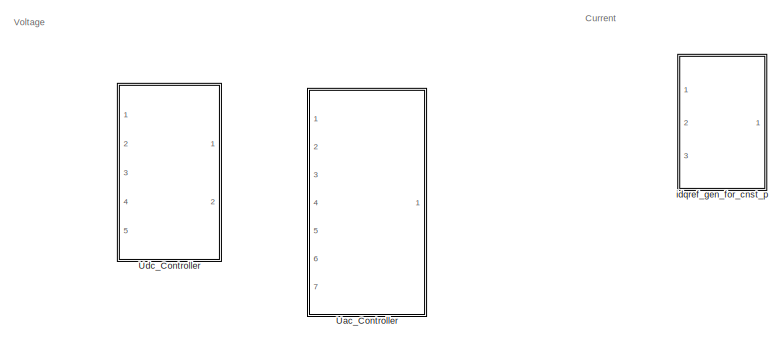
[diagram: root canvas - part 1/2, top left region]
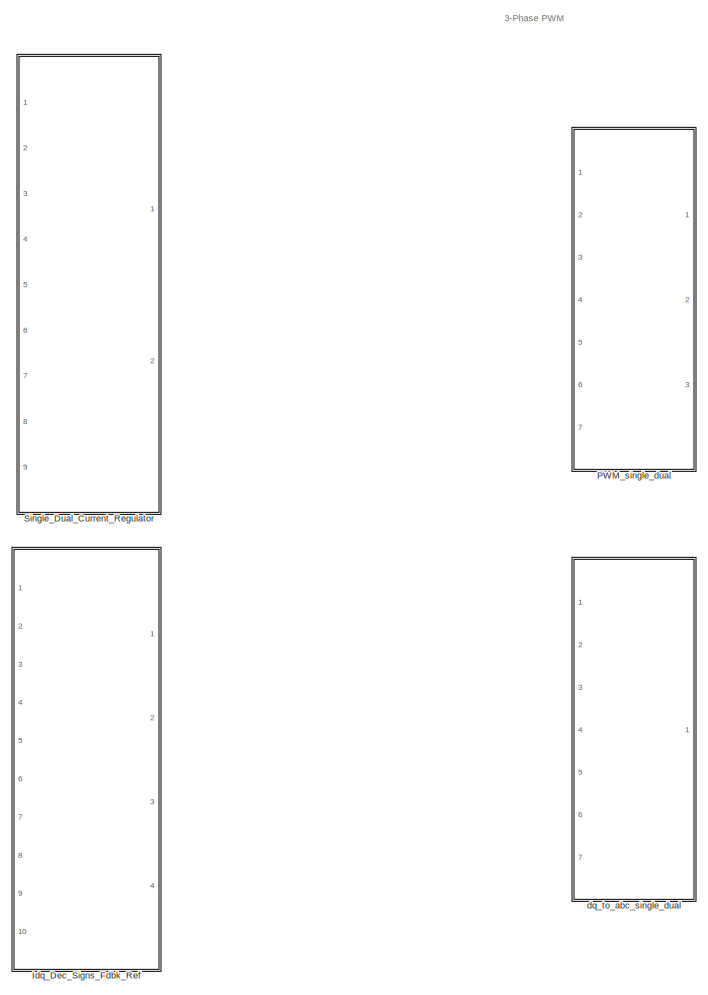
[diagram: root canvas - part 2/2, right side, full height]
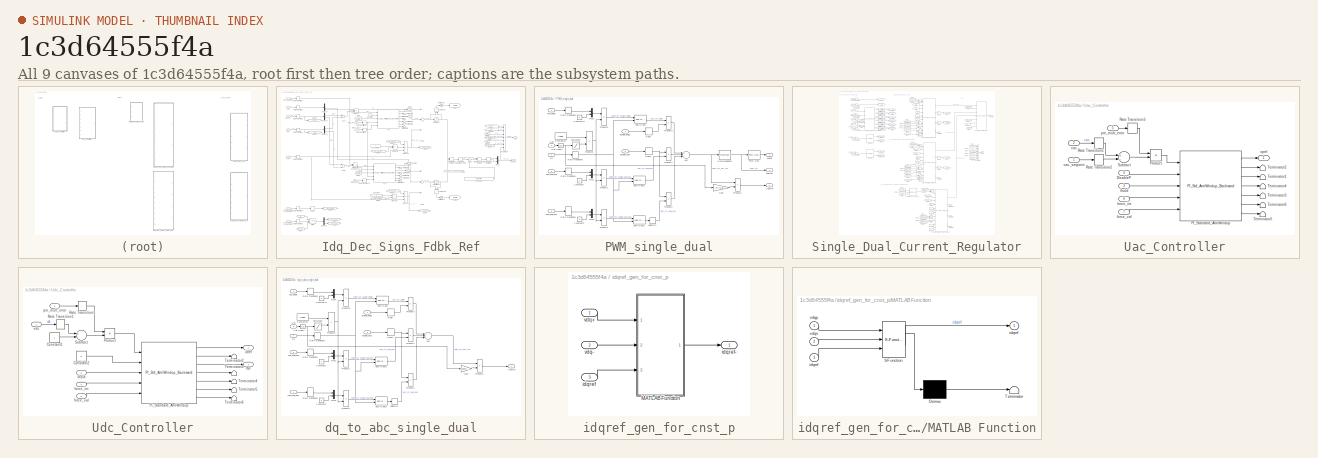
[diagram: thumbnail index - all 9 canvases of the model, root first then tree order]
MODEL slx_1c3d64555f4a
KIND library
CONFIG AbsTol = auto
CONFIG EnableMultiTasking = off
CONFIG FixedStep = auto
CONFIG MaxStep = auto
CONFIG MinStep = auto
CONFIG RelTol = 1e-3
CONFIG SampleTimeConstraint = Unconstrained
CONFIG Solver = VariableStepAuto
CONFIG SolverName = VariableStepAuto
CONFIG StartTime = 0.0
CONFIG StopTime = 10.0
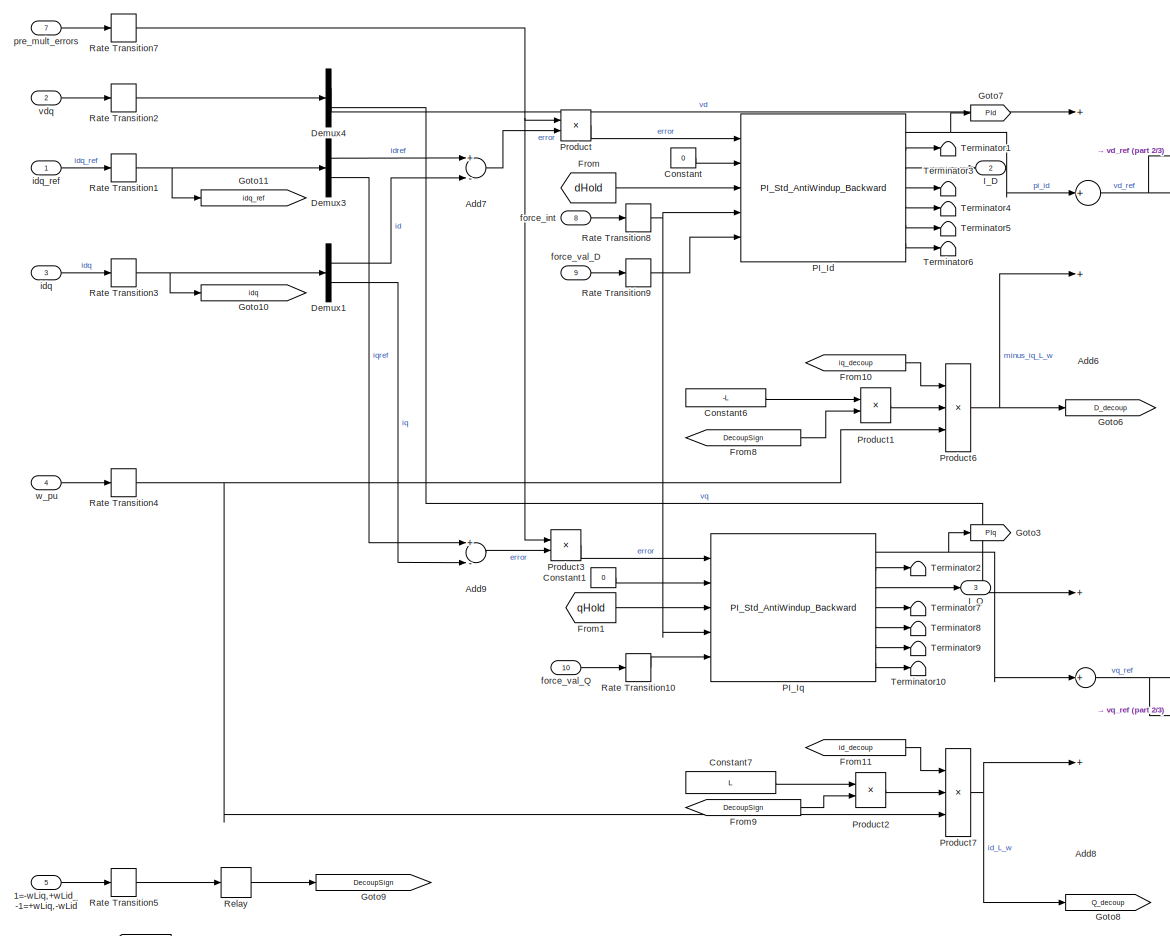
[diagram: Idq_Dec_Signs_Fdbk_Ref - part 1/3, left side, full height]
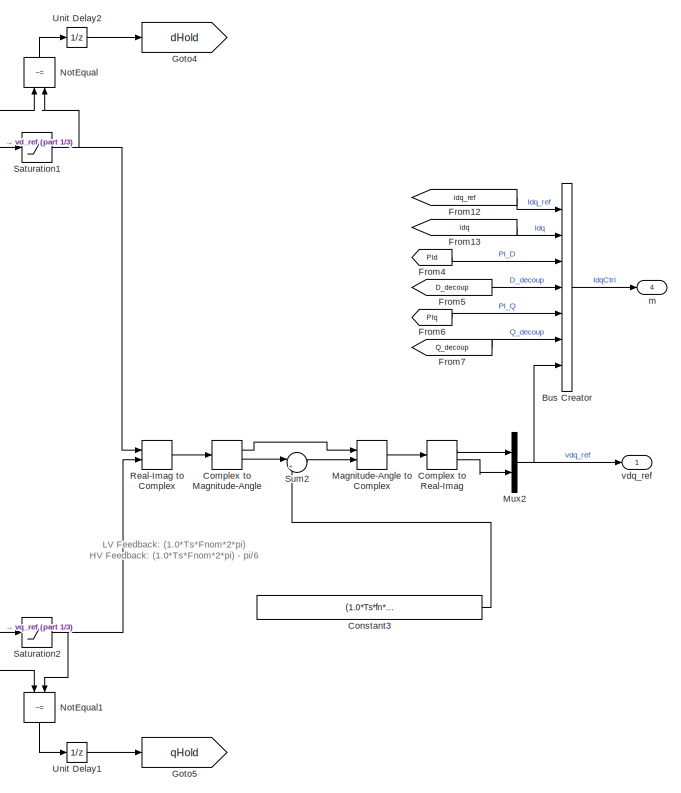
[diagram: Idq_Dec_Signs_Fdbk_Ref - part 2/3, middle right region]
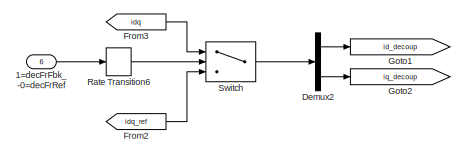
[diagram: Idq_Dec_Signs_Fdbk_Ref - part 3/3, bottom left region]
BLOCK [SubSystem] Idq_Dec_Signs_Fdbk_Ref
  Ports = [10, 4]
  RequestExecContextInheritance = off
BLOCK [Inport] Idq_Dec_Signs_Fdbk_Ref/1=-wLiq,+wLid_-1=+wLiq,-wLid
  IconDisplay = Port number
  Port = 5
BLOCK [Inport] Idq_Dec_Signs_Fdbk_Ref/1=decFrFbk_-0=decFrRef
  IconDisplay = Port number
  Port = 6
BLOCK [Sum] Idq_Dec_Signs_Fdbk_Ref/Add6
  InputSameDT = off
  Inputs = +++
  OutDataTypeStr = Inherit: Inherit via internal rule
  Ports = [3, 1]
  SaturateOnIntegerOverflow = off
BLOCK [Sum] Idq_Dec_Signs_Fdbk_Ref/Add7
  InputSameDT = off
  Inputs = +-
  OutDataTypeStr = Inherit: Inherit via internal rule
  Ports = [2, 1]
  SaturateOnIntegerOverflow = off
BLOCK [Sum] Idq_Dec_Signs_Fdbk_Ref/Add8
  InputSameDT = off
  Inputs = +++
  OutDataTypeStr = Inherit: Inherit via internal rule
  Ports = [3, 1]
  SaturateOnIntegerOverflow = off
BLOCK [Sum] Idq_Dec_Signs_Fdbk_Ref/Add9
  InputSameDT = off
  Inputs = +-
  OutDataTypeStr = Inherit: Inherit via internal rule
  Ports = [2, 1]
  SaturateOnIntegerOverflow = off
BLOCK [BusCreator] Idq_Dec_Signs_Fdbk_Ref/Bus Creator
  DisplayOption = bar
  InheritFromInputs = on
  Inputs = 7
  Ports = [7, 1]
BLOCK [ComplexToMagnitudeAngle] Idq_Dec_Signs_Fdbk_Ref/Complex to Magnitude-Angle
  Ports = [1, 2]
BLOCK [ComplexToRealImag] Idq_Dec_Signs_Fdbk_Ref/Complex to Real-Imag
  Ports = [1, 2]
BLOCK [Constant] Idq_Dec_Signs_Fdbk_Ref/Constant
  SampleTime = Ts
  Value = 0
BLOCK [Constant] Idq_Dec_Signs_Fdbk_Ref/Constant1
  SampleTime = Ts
  Value = 0
BLOCK [Constant] Idq_Dec_Signs_Fdbk_Ref/Constant3
  SampleTime = Ts
  Value = (1.0*Ts*fn*2*pi+TrafoPhaseComp)
BLOCK [Constant] Idq_Dec_Signs_Fdbk_Ref/Constant6
  SampleTime = Ts
  Value = -L
BLOCK [Constant] Idq_Dec_Signs_Fdbk_Ref/Constant7
  SampleTime = Ts
  Value = L
BLOCK [Demux] Idq_Dec_Signs_Fdbk_Ref/Demux1
  DisplayOption = bar
  Outputs = 2
  Ports = [1, 2]
BLOCK [Demux] Idq_Dec_Signs_Fdbk_Ref/Demux2
  DisplayOption = bar
  Outputs = 2
  Ports = [1, 2]
BLOCK [Demux] Idq_Dec_Signs_Fdbk_Ref/Demux3
  DisplayOption = bar
  Outputs = 2
  Ports = [1, 2]
BLOCK [Demux] Idq_Dec_Signs_Fdbk_Ref/Demux4
  DisplayOption = bar
  Outputs = 2
  Ports = [1, 2]
BLOCK [From] Idq_Dec_Signs_Fdbk_Ref/From
  GotoTag = dHold
BLOCK [From] Idq_Dec_Signs_Fdbk_Ref/From1
  GotoTag = qHold
BLOCK [From] Idq_Dec_Signs_Fdbk_Ref/From10
  GotoTag = iq_decoup
BLOCK [From] Idq_Dec_Signs_Fdbk_Ref/From11
  GotoTag = id_decoup
BLOCK [From] Idq_Dec_Signs_Fdbk_Ref/From12
  GotoTag = idq_ref
BLOCK [From] Idq_Dec_Signs_Fdbk_Ref/From13
  GotoTag = idq
BLOCK [From] Idq_Dec_Signs_Fdbk_Ref/From2
  GotoTag = idq_ref
BLOCK [From] Idq_Dec_Signs_Fdbk_Ref/From3
  GotoTag = idq
BLOCK [From] Idq_Dec_Signs_Fdbk_Ref/From4
  GotoTag = PId
BLOCK [From] Idq_Dec_Signs_Fdbk_Ref/From5
  GotoTag = D_decoup
BLOCK [From] Idq_Dec_Signs_Fdbk_Ref/From6
  GotoTag = PIq
BLOCK [From] Idq_Dec_Signs_Fdbk_Ref/From7
  GotoTag = Q_decoup
BLOCK [From] Idq_Dec_Signs_Fdbk_Ref/From8
  GotoTag = DecoupSign
BLOCK [From] Idq_Dec_Signs_Fdbk_Ref/From9
  GotoTag = DecoupSign
BLOCK [Goto] Idq_Dec_Signs_Fdbk_Ref/Goto1
  GotoTag = id_decoup
BLOCK [Goto] Idq_Dec_Signs_Fdbk_Ref/Goto10
  GotoTag = idq
BLOCK [Goto] Idq_Dec_Signs_Fdbk_Ref/Goto11
  GotoTag = idq_ref
BLOCK [Goto] Idq_Dec_Signs_Fdbk_Ref/Goto2
  GotoTag = iq_decoup
BLOCK [Goto] Idq_Dec_Signs_Fdbk_Ref/Goto3
  GotoTag = PIq
BLOCK [Goto] Idq_Dec_Signs_Fdbk_Ref/Goto4
  GotoTag = dHold
BLOCK [Goto] Idq_Dec_Signs_Fdbk_Ref/Goto5
  GotoTag = qHold
BLOCK [Goto] Idq_Dec_Signs_Fdbk_Ref/Goto6
  GotoTag = D_decoup
BLOCK [Goto] Idq_Dec_Signs_Fdbk_Ref/Goto7
  GotoTag = PId
BLOCK [Goto] Idq_Dec_Signs_Fdbk_Ref/Goto8
  GotoTag = Q_decoup
BLOCK [Goto] Idq_Dec_Signs_Fdbk_Ref/Goto9
  GotoTag = DecoupSign
BLOCK [Outport] Idq_Dec_Signs_Fdbk_Ref/I_D
  IconDisplay = Port number
  Port = 2
BLOCK [Outport] Idq_Dec_Signs_Fdbk_Ref/I_Q
  IconDisplay = Port number
  Port = 3
BLOCK [MagnitudeAngleToComplex] Idq_Dec_Signs_Fdbk_Ref/Magnitude-Angle to Complex
  Ports = [2, 1]
BLOCK [Mux] Idq_Dec_Signs_Fdbk_Ref/Mux2
  DisplayOption = bar
  Inputs = 2
  Ports = [2, 1]
BLOCK [RelationalOperator] Idq_Dec_Signs_Fdbk_Ref/NotEqual
  InputSameDT = off
  Operator = ~=
  OutDataTypeStr = boolean
  Ports = [2, 1]
BLOCK [RelationalOperator] Idq_Dec_Signs_Fdbk_Ref/NotEqual1
  InputSameDT = off
  Operator = ~=
  OutDataTypeStr = boolean
  Ports = [2, 1]
BLOCK [Reference] Idq_Dec_Signs_Fdbk_Ref/PI_Id  REF=pwrsysBasic/PI_Std_AntiWindup_Backward
  Ports = [5, 7]
  SourceBlock = pwrsysBasic/PI_Std_AntiWindup_Backward
  SourceProductName = NTNU Power Systems
  SourceType = PI regulator with anti-windup
BLOCK [Reference] Idq_Dec_Signs_Fdbk_Ref/PI_Iq  REF=pwrsysBasic/PI_Std_AntiWindup_Backward
  Ports = [5, 7]
  SourceBlock = pwrsysBasic/PI_Std_AntiWindup_Backward
  SourceProductName = NTNU Power Systems
  SourceType = PI regulator with anti-windup
BLOCK [Product] Idq_Dec_Signs_Fdbk_Ref/Product
  InputSameDT = off
  OutDataTypeStr = Inherit: Inherit via internal rule
  Ports = [2, 1]
  RndMeth = Floor
  SaturateOnIntegerOverflow = off
BLOCK [Product] Idq_Dec_Signs_Fdbk_Ref/Product1
  InputSameDT = off
  OutDataTypeStr = Inherit: Inherit via internal rule
  Ports = [2, 1]
  SaturateOnIntegerOverflow = off
BLOCK [Product] Idq_Dec_Signs_Fdbk_Ref/Product2
  InputSameDT = off
  OutDataTypeStr = Inherit: Inherit via internal rule
  Ports = [2, 1]
  SaturateOnIntegerOverflow = off
BLOCK [Product] Idq_Dec_Signs_Fdbk_Ref/Product3
  InputSameDT = off
  OutDataTypeStr = Inherit: Inherit via internal rule
  Ports = [2, 1]
  RndMeth = Floor
  SaturateOnIntegerOverflow = off
BLOCK [Product] Idq_Dec_Signs_Fdbk_Ref/Product6
  InputSameDT = off
  Inputs = 3
  OutDataTypeStr = Inherit: Inherit via internal rule
  Ports = [3, 1]
  SaturateOnIntegerOverflow = off
BLOCK [Product] Idq_Dec_Signs_Fdbk_Ref/Product7
  InputSameDT = off
  Inputs = 3
  OutDataTypeStr = Inherit: Inherit via internal rule
  Ports = [3, 1]
  SaturateOnIntegerOverflow = off
BLOCK [RateTransition] Idq_Dec_Signs_Fdbk_Ref/Rate Transition1
  InitialCondition = [0 0]
  OutPortSampleTime = Ts
BLOCK [RateTransition] Idq_Dec_Signs_Fdbk_Ref/Rate Transition10
  OutPortSampleTime = Ts
BLOCK [RateTransition] Idq_Dec_Signs_Fdbk_Ref/Rate Transition2
  InitialCondition = [0 0]
  OutPortSampleTime = Ts
BLOCK [RateTransition] Idq_Dec_Signs_Fdbk_Ref/Rate Transition3
  InitialCondition = [0 0]
  OutPortSampleTime = Ts
BLOCK [RateTransition] Idq_Dec_Signs_Fdbk_Ref/Rate Transition4
  InitialCondition = 1
  OutPortSampleTime = Ts
BLOCK [RateTransition] Idq_Dec_Signs_Fdbk_Ref/Rate Transition5
  InitialCondition = 1
  OutPortSampleTime = Ts
BLOCK [RateTransition] Idq_Dec_Signs_Fdbk_Ref/Rate Transition6
  OutPortSampleTime = Ts
BLOCK [RateTransition] Idq_Dec_Signs_Fdbk_Ref/Rate Transition7
  OutPortSampleTime = Ts
BLOCK [RateTransition] Idq_Dec_Signs_Fdbk_Ref/Rate Transition8
  OutPortSampleTime = Ts
BLOCK [RateTransition] Idq_Dec_Signs_Fdbk_Ref/Rate Transition9
  OutPortSampleTime = Ts
BLOCK [RealImagToComplex] Idq_Dec_Signs_Fdbk_Ref/Real-Imag to Complex
  Ports = [2, 1]
BLOCK [Relay] Idq_Dec_Signs_Fdbk_Ref/Relay
  InputProcessing = Elements as channels (sample based)
  OffOutputValue = -1
  OffSwitchValue = -0.1
  OnSwitchValue = 0
BLOCK [Saturate] Idq_Dec_Signs_Fdbk_Ref/Saturation1
  InputPortMap = u0
  LowerLimit = PI_min
  Ports = [1, 1]
  UpperLimit = PI_max
BLOCK [Saturate] Idq_Dec_Signs_Fdbk_Ref/Saturation2
  InputPortMap = u0
  LowerLimit = PI_min
  Ports = [1, 1]
  UpperLimit = PI_max
BLOCK [Sum] Idq_Dec_Signs_Fdbk_Ref/Sum2
  IconShape = round
  InputSameDT = off
  Inputs = |++
  OutDataTypeStr = Inherit: Inherit via internal rule
  Ports = [2, 1]
  SaturateOnIntegerOverflow = off
BLOCK [Switch] Idq_Dec_Signs_Fdbk_Ref/Switch
  Criteria = u2 > Threshold
  InputSameDT = off
  SaturateOnIntegerOverflow = off
  Threshold = 0.5
BLOCK [Terminator] Idq_Dec_Signs_Fdbk_Ref/Terminator1
BLOCK [Terminator] Idq_Dec_Signs_Fdbk_Ref/Terminator10
BLOCK [Terminator] Idq_Dec_Signs_Fdbk_Ref/Terminator2
BLOCK [Terminator] Idq_Dec_Signs_Fdbk_Ref/Terminator3
BLOCK [Terminator] Idq_Dec_Signs_Fdbk_Ref/Terminator4
BLOCK [Terminator] Idq_Dec_Signs_Fdbk_Ref/Terminator5
BLOCK [Terminator] Idq_Dec_Signs_Fdbk_Ref/Terminator6
BLOCK [Terminator] Idq_Dec_Signs_Fdbk_Ref/Terminator7
BLOCK [Terminator] Idq_Dec_Signs_Fdbk_Ref/Terminator8
BLOCK [Terminator] Idq_Dec_Signs_Fdbk_Ref/Terminator9
BLOCK [UnitDelay] Idq_Dec_Signs_Fdbk_Ref/Unit Delay1
  InputProcessing = Elements as channels (sample based)
  SampleTime = Ts
BLOCK [UnitDelay] Idq_Dec_Signs_Fdbk_Ref/Unit Delay2
  InputProcessing = Elements as channels (sample based)
  SampleTime = Ts
BLOCK [Inport] Idq_Dec_Signs_Fdbk_Ref/force_int
  IconDisplay = Port number
  Port = 8
BLOCK [Inport] Idq_Dec_Signs_Fdbk_Ref/force_val_D
  IconDisplay = Port number
  Port = 9
BLOCK [Inport] Idq_Dec_Signs_Fdbk_Ref/force_val_Q
  IconDisplay = Port number
  Port = 10
BLOCK [Inport] Idq_Dec_Signs_Fdbk_Ref/idq
  IconDisplay = Port number
  Port = 3
BLOCK [Inport] Idq_Dec_Signs_Fdbk_Ref/idq_ref
  IconDisplay = Port number
BLOCK [Outport] Idq_Dec_Signs_Fdbk_Ref/m
  IconDisplay = Port number
  Port = 4
BLOCK [Inport] Idq_Dec_Signs_Fdbk_Ref/pre_mult_errors
  IconDisplay = Port number
  Port = 7
BLOCK [Inport] Idq_Dec_Signs_Fdbk_Ref/vdq
  IconDisplay = Port number
  Port = 2
BLOCK [Outport] Idq_Dec_Signs_Fdbk_Ref/vdq_ref
  IconDisplay = Port number
BLOCK [Inport] Idq_Dec_Signs_Fdbk_Ref/w_pu
  IconDisplay = Port number
  Port = 4
BLOCK [SubSystem] PWM_single_dual
  Ports = [7, 3]
  RequestExecContextInheritance = off
BLOCK [Sum] PWM_single_dual/Add
  InputSameDT = off
  Inputs = +++
  OutDataTypeStr = Inherit: Inherit via internal rule
  Ports = [3, 1]
  SaturateOnIntegerOverflow = off
BLOCK [Constant] PWM_single_dual/Constant1
  Value = 0
BLOCK [Constant] PWM_single_dual/Constant10
  Value = Uabp
BLOCK [Constant] PWM_single_dual/Constant11
  Value = 0
BLOCK [Constant] PWM_single_dual/Constant2
  Value = 0
BLOCK [Inport] PWM_single_dual/Enable_dual
  IconDisplay = Port number
  Port = 5
BLOCK [Inport] PWM_single_dual/Enable_single
  IconDisplay = Port number
  Port = 2
BLOCK [Gain] PWM_single_dual/Gain
  Gain = 3^(-0.5)
  OutDataTypeStr = Inherit: Inherit via internal rule
  ParamDataTypeStr = Inherit: Inherit via internal rule
  SaturateOnIntegerOverflow = off
BLOCK [Mux] PWM_single_dual/Mux1
  DisplayOption = bar
  Inputs = [2 1]
  Ports = [2, 1]
BLOCK [Mux] PWM_single_dual/Mux2
  DisplayOption = bar
  Inputs = [2 1]
  Ports = [2, 1]
BLOCK [Mux] PWM_single_dual/Mux3
  DisplayOption = bar
  Inputs = [2 1]
  Ports = [2, 1]
BLOCK [Reference] PWM_single_dual/Overmodulation  REF=powerlib_meascontrol/Pulse & Signal
Generators/Overmodulation
  Commented = through
  Ports = [1, 1]
  SourceBlock = powerlib_meascontrol/Pulse & Signal\nGenerators/Overmodulation
  SourceProductBaseCode = PS
  SourceProductName = Simscape Power Systems
  SourceType = Overmodulation
BLOCK [Reference] PWM_single_dual/PWM Gen  REF=powerlib_meascontrol/Pulse & Signal
Generators/PWM Generator
(2-Level)
  Ports = [1, 1]
  SourceBlock = powerlib_meascontrol/Pulse & Signal\nGenerators/PWM Generator\n(2-Level)
  SourceProductBaseCode = PS
  SourceProductName = Simscape Power Systems
  SourceType = PWM Generator (2-Level)
BLOCK [Product] PWM_single_dual/Product1
  InputSameDT = off
  Inputs = **
  OutDataTypeStr = Inherit: Inherit via internal rule
  Ports = [2, 1]
  RndMeth = Floor
  SaturateOnIntegerOverflow = off
BLOCK [Product] PWM_single_dual/Product2
  InputSameDT = off
  Inputs = **
  OutDataTypeStr = Inherit: Inherit via internal rule
  Ports = [2, 1]
  RndMeth = Floor
  SaturateOnIntegerOverflow = off
BLOCK [Product] PWM_single_dual/Product3
  InputSameDT = off
  Inputs = **
  OutDataTypeStr = Inherit: Inherit via internal rule
  Ports = [2, 1]
  RndMeth = Floor
  SaturateOnIntegerOverflow = off
BLOCK [Product] PWM_single_dual/Product4
  InputSameDT = off
  Inputs = **
  OutDataTypeStr = Inherit: Inherit via internal rule
  Ports = [2, 1]
  RndMeth = Floor
  SaturateOnIntegerOverflow = off
BLOCK [Product] PWM_single_dual/Product5
  InputSameDT = off
  Inputs = **
  OutDataTypeStr = Inherit: Inherit via internal rule
  Ports = [2, 1]
  RndMeth = Floor
  SaturateOnIntegerOverflow = off
BLOCK [Product] PWM_single_dual/Product6
  InputSameDT = off
  Inputs = **
  OutDataTypeStr = Inherit: Inherit via internal rule
  Ports = [2, 1]
  RndMeth = Floor
  SaturateOnIntegerOverflow = off
BLOCK [Product] PWM_single_dual/Product8
  InputSameDT = off
  Inputs = */
  OutDataTypeStr = Inherit: Inherit via internal rule
  Ports = [2, 1]
  RndMeth = Floor
  SaturateOnIntegerOverflow = off
BLOCK [Product] PWM_single_dual/Product9
  InputSameDT = off
  Inputs = **
  OutDataTypeStr = Inherit: Inherit via internal rule
  Ports = [2, 1]
  RndMeth = Floor
  SaturateOnIntegerOverflow = off
BLOCK [RateTransition] PWM_single_dual/Rate Transition1
  OutPortSampleTime = Ts
BLOCK [RateTransition] PWM_single_dual/Rate Transition2
  OutPortSampleTime = Ts
BLOCK [RateTransition] PWM_single_dual/Rate Transition3
  OutPortSampleTime = Ts
BLOCK [RateTransition] PWM_single_dual/Rate Transition5
  OutPortSampleTime = Ts
BLOCK [Relay] PWM_single_dual/Relay
  InputProcessing = Elements as channels (sample based)
  OffSwitchValue = 0.4
  OnSwitchValue = 0.6
BLOCK [Relay] PWM_single_dual/Relay1
  InputProcessing = Elements as channels (sample based)
  OffSwitchValue = 0.4
  OnSwitchValue = 0.6
BLOCK [Saturate] PWM_single_dual/Saturation
  InputPortMap = u0
  LowerLimit = 0.001*Uabp
  Ports = [1, 1]
  UpperLimit = 10*Uabp
BLOCK [Selector] PWM_single_dual/Selector1
  IndexOptions = Index vector (dialog)
  Indices = [1 3 2]
  InputPortWidth = 3
  OutputSizes = 1
  Ports = [1, 1]
BLOCK [Outport] PWM_single_dual/Uabcref
  IconDisplay = Port number
  Port = 2
BLOCK [Inport] PWM_single_dual/Udc
  IconDisplay = Port number
  Port = 6
BLOCK [UnitDelay] PWM_single_dual/Unit Delay2
  InitialCondition = Uabp
  InputProcessing = Elements as channels (sample based)
  SampleTime = Ts
BLOCK [Reference] PWM_single_dual/dq0 to abc  REF=powerlib_meascontrol/Transformations/dq0 to abc
  Ports = [2, 1]
  SourceBlock = powerlib_meascontrol/Transformations/dq0 to abc
  SourceProductBaseCode = PS
  SourceProductName = Simscape Power Systems
  SourceType = dq0 to abc Transformation
BLOCK [Reference] PWM_single_dual/dq0 to abc1  REF=powerlib_meascontrol/Transformations/dq0 to abc
  Ports = [2, 1]
  SourceBlock = powerlib_meascontrol/Transformations/dq0 to abc
  SourceProductBaseCode = PS
  SourceProductName = Simscape Power Systems
  SourceType = dq0 to abc Transformation
BLOCK [Reference] PWM_single_dual/dq0 to abc2  REF=powerlib_meascontrol/Transformations/dq0 to abc
  Ports = [2, 1]
  SourceBlock = powerlib_meascontrol/Transformations/dq0 to abc
  SourceProductBaseCode = PS
  SourceProductName = Simscape Power Systems
  SourceType = dq0 to abc Transformation
BLOCK [Outport] PWM_single_dual/pulses
  IconDisplay = Port number
BLOCK [Outport] PWM_single_dual/uabcref
  IconDisplay = Port number
  Port = 3
BLOCK [Inport] PWM_single_dual/vdq_dual_neg
  IconDisplay = Port number
  Port = 4
BLOCK [Inport] PWM_single_dual/vdq_dual_pos
  IconDisplay = Port number
  Port = 3
BLOCK [Inport] PWM_single_dual/vdq_single
  IconDisplay = Port number
BLOCK [Inport] PWM_single_dual/wt
  IconDisplay = Port number
  Port = 7
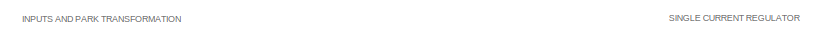
[diagram: Single_Dual_Current_Regulator - part 1/4, top left region]
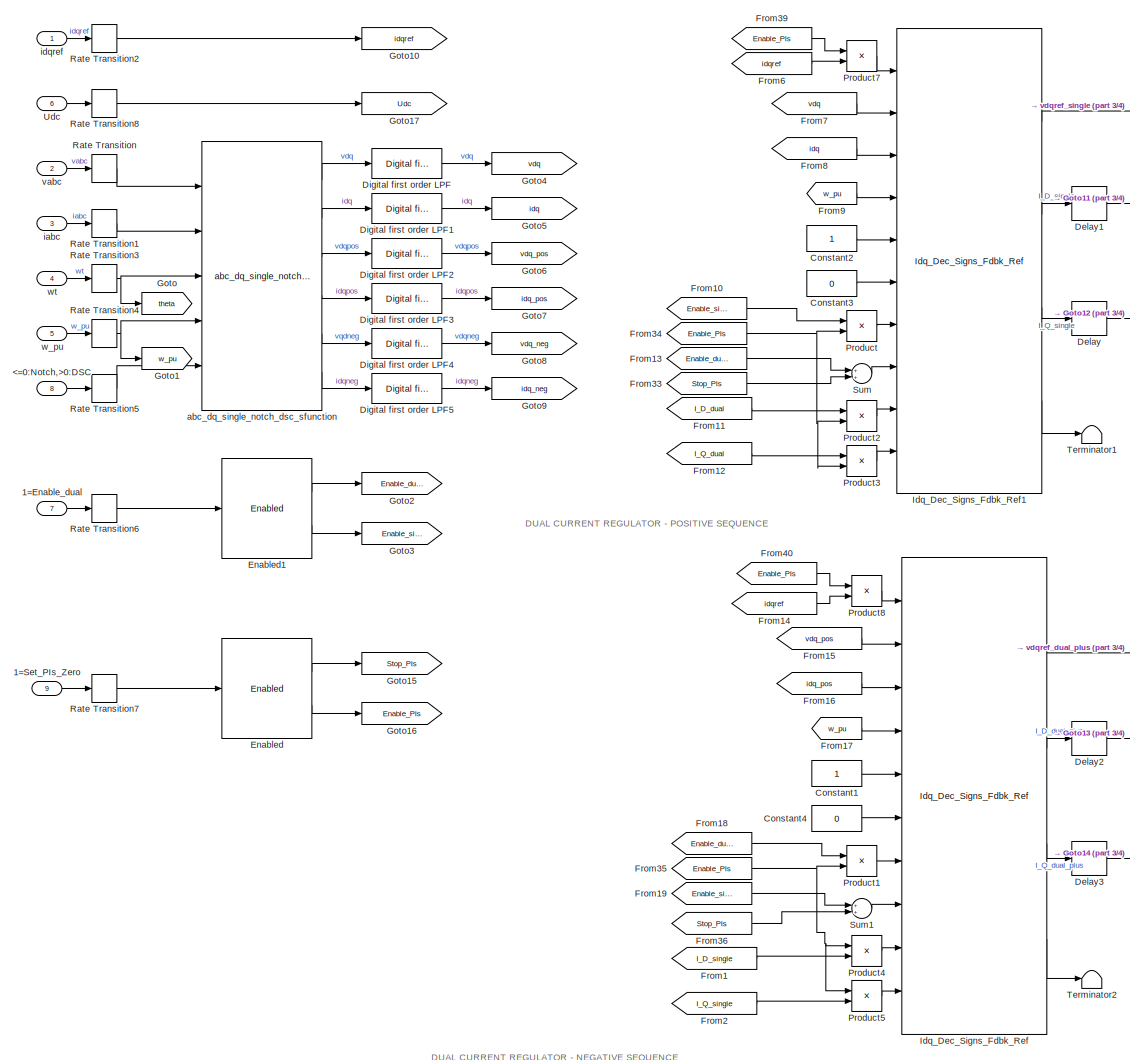
[diagram: Single_Dual_Current_Regulator - part 2/4, central region]
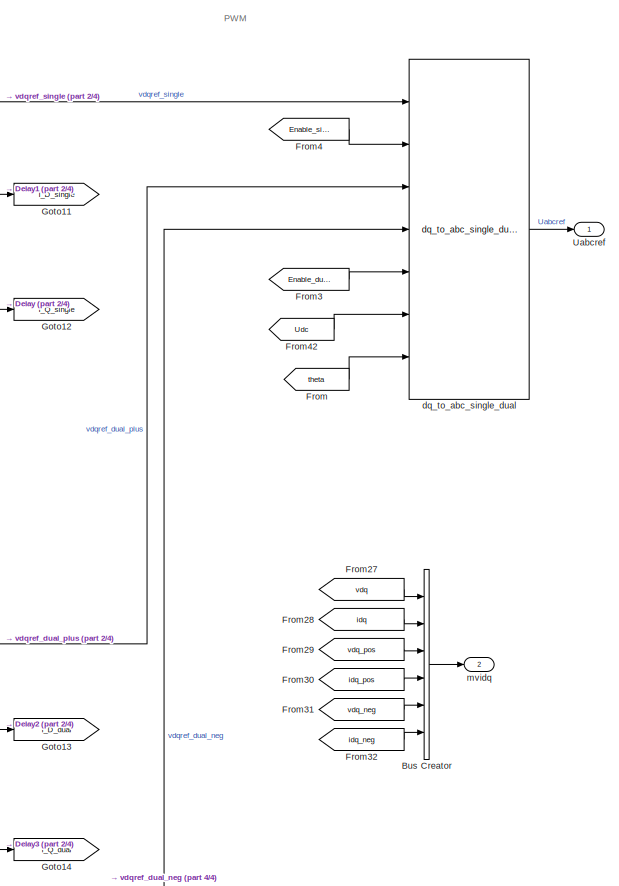
[diagram: Single_Dual_Current_Regulator - part 3/4, top right region]
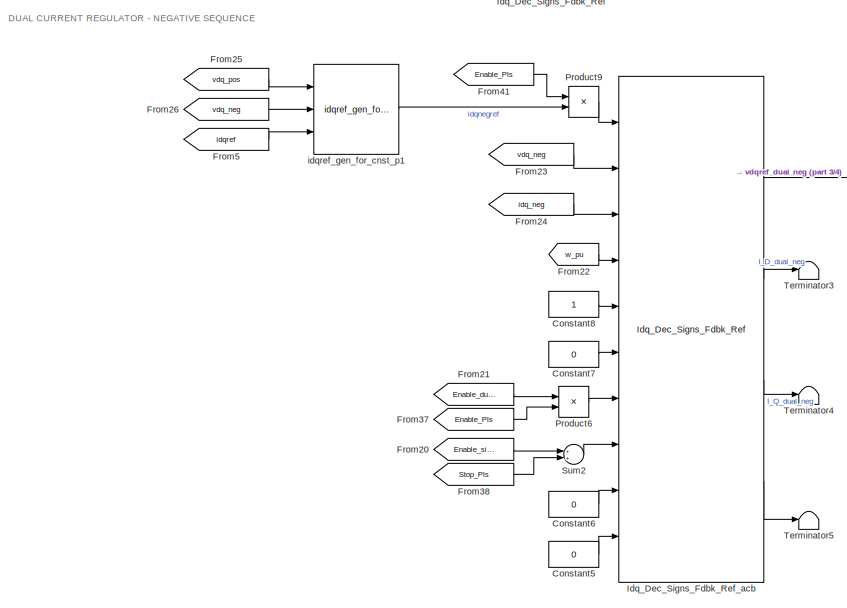
[diagram: Single_Dual_Current_Regulator - part 4/4, bottom center region]
BLOCK [SubSystem] Single_Dual_Current_Regulator
  Ports = [9, 2]
  RequestExecContextInheritance = off
BLOCK [Inport] Single_Dual_Current_Regulator/1=Enable_dual
  IconDisplay = Port number
  Port = 7
BLOCK [Inport] Single_Dual_Current_Regulator/1=Set_PIs_Zero
  IconDisplay = Port number
  Port = 9
BLOCK [Inport] Single_Dual_Current_Regulator/<=0:Notch,>0:DSC
  IconDisplay = Port number
  Port = 8
BLOCK [BusCreator] Single_Dual_Current_Regulator/Bus Creator
  DisplayOption = bar
  InheritFromInputs = on
  Inputs = 6
  Ports = [6, 1]
BLOCK [Constant] Single_Dual_Current_Regulator/Constant1
  SampleTime = Ts
BLOCK [Constant] Single_Dual_Current_Regulator/Constant2
  SampleTime = Ts
BLOCK [Constant] Single_Dual_Current_Regulator/Constant3
  SampleTime = Ts
  Value = 0
BLOCK [Constant] Single_Dual_Current_Regulator/Constant4
  SampleTime = Ts
  Value = 0
BLOCK [Constant] Single_Dual_Current_Regulator/Constant5
  SampleTime = Ts
  Value = 0
BLOCK [Constant] Single_Dual_Current_Regulator/Constant6
  SampleTime = Ts
  Value = 0
BLOCK [Constant] Single_Dual_Current_Regulator/Constant7
  SampleTime = Ts
  Value = 0
BLOCK [Constant] Single_Dual_Current_Regulator/Constant8
  SampleTime = Ts
BLOCK [Delay] Single_Dual_Current_Regulator/Delay
  DelayLength = 1
  InitialCondition = 0
  InputPortMap = u0
  Ports = [1, 1]
  SampleTime = Ts
BLOCK [Delay] Single_Dual_Current_Regulator/Delay1
  DelayLength = 1
  InitialCondition = 0
  InputPortMap = u0
  Ports = [1, 1]
  SampleTime = Ts
BLOCK [Delay] Single_Dual_Current_Regulator/Delay2
  DelayLength = 1
  InitialCondition = 0
  InputPortMap = u0
  Ports = [1, 1]
  SampleTime = Ts
BLOCK [Delay] Single_Dual_Current_Regulator/Delay3
  DelayLength = 1
  InitialCondition = 0
  InputPortMap = u0
  Ports = [1, 1]
  SampleTime = Ts
BLOCK [Reference] Single_Dual_Current_Regulator/Digital first order LPF  REF=pwrsysBasic/Digital first order LPF
  Ports = [1, 1]
  SourceBlock = pwrsysBasic/Digital first order LPF
  SourceProductName = NTNU Power Systems
  SourceType = Digital first-order low-pass filter
BLOCK [Reference] Single_Dual_Current_Regulator/Digital first order LPF1  REF=pwrsysBasic/Digital first order LPF
  Ports = [1, 1]
  SourceBlock = pwrsysBasic/Digital first order LPF
  SourceProductName = NTNU Power Systems
  SourceType = Digital first-order low-pass filter
BLOCK [Reference] Single_Dual_Current_Regulator/Digital first order LPF2  REF=pwrsysBasic/Digital first order LPF
  Ports = [1, 1]
  SourceBlock = pwrsysBasic/Digital first order LPF
  SourceProductName = NTNU Power Systems
  SourceType = Digital first-order low-pass filter
BLOCK [Reference] Single_Dual_Current_Regulator/Digital first order LPF3  REF=pwrsysBasic/Digital first order LPF
  Ports = [1, 1]
  SourceBlock = pwrsysBasic/Digital first order LPF
  SourceProductName = NTNU Power Systems
  SourceType = Digital first-order low-pass filter
BLOCK [Reference] Single_Dual_Current_Regulator/Digital first order LPF4  REF=pwrsysBasic/Digital first order LPF
  Ports = [1, 1]
  SourceBlock = pwrsysBasic/Digital first order LPF
  SourceProductName = NTNU Power Systems
  SourceType = Digital first-order low-pass filter
BLOCK [Reference] Single_Dual_Current_Regulator/Digital first order LPF5  REF=pwrsysBasic/Digital first order LPF
  Ports = [1, 1]
  SourceBlock = pwrsysBasic/Digital first order LPF
  SourceProductName = NTNU Power Systems
  SourceType = Digital first-order low-pass filter
BLOCK [Reference] Single_Dual_Current_Regulator/Enabled  REF=pwrsysBasic/Enabled
  Ports = [1, 2]
  SourceBlock = pwrsysBasic/Enabled
  SourceProductName = NTNU Power Systems
  SourceType = Enabled block
BLOCK [Reference] Single_Dual_Current_Regulator/Enabled1  REF=pwrsysBasic/Enabled
  Ports = [1, 2]
  SourceBlock = pwrsysBasic/Enabled
  SourceProductName = NTNU Power Systems
  SourceType = Enabled block
BLOCK [From] Single_Dual_Current_Regulator/From
  GotoTag = theta
BLOCK [From] Single_Dual_Current_Regulator/From1
  GotoTag = I_D_single
BLOCK [From] Single_Dual_Current_Regulator/From10
  GotoTag = Enable_single
BLOCK [From] Single_Dual_Current_Regulator/From11
  GotoTag = I_D_dual
BLOCK [From] Single_Dual_Current_Regulator/From12
  GotoTag = I_Q_dual
BLOCK [From] Single_Dual_Current_Regulator/From13
  GotoTag = Enable_dual
BLOCK [From] Single_Dual_Current_Regulator/From14
  GotoTag = idqref
BLOCK [From] Single_Dual_Current_Regulator/From15
  GotoTag = vdq_pos
BLOCK [From] Single_Dual_Current_Regulator/From16
  GotoTag = idq_pos
BLOCK [From] Single_Dual_Current_Regulator/From17
  GotoTag = w_pu
BLOCK [From] Single_Dual_Current_Regulator/From18
  GotoTag = Enable_dual
BLOCK [From] Single_Dual_Current_Regulator/From19
  GotoTag = Enable_single
BLOCK [From] Single_Dual_Current_Regulator/From2
  GotoTag = I_Q_single
BLOCK [From] Single_Dual_Current_Regulator/From20
  GotoTag = Enable_single
BLOCK [From] Single_Dual_Current_Regulator/From21
  GotoTag = Enable_dual
BLOCK [From] Single_Dual_Current_Regulator/From22
  GotoTag = w_pu
BLOCK [From] Single_Dual_Current_Regulator/From23
  GotoTag = vdq_neg
BLOCK [From] Single_Dual_Current_Regulator/From24
  GotoTag = idq_neg
BLOCK [From] Single_Dual_Current_Regulator/From25
  GotoTag = vdq_pos
BLOCK [From] Single_Dual_Current_Regulator/From26
  GotoTag = vdq_neg
BLOCK [From] Single_Dual_Current_Regulator/From27
  GotoTag = vdq
BLOCK [From] Single_Dual_Current_Regulator/From28
  GotoTag = idq
BLOCK [From] Single_Dual_Current_Regulator/From29
  GotoTag = vdq_pos
BLOCK [From] Single_Dual_Current_Regulator/From3
  GotoTag = Enable_dual
BLOCK [From] Single_Dual_Current_Regulator/From30
  GotoTag = idq_pos
BLOCK [From] Single_Dual_Current_Regulator/From31
  GotoTag = vdq_neg
BLOCK [From] Single_Dual_Current_Regulator/From32
  GotoTag = idq_neg
BLOCK [From] Single_Dual_Current_Regulator/From33
  GotoTag = Stop_PIs
BLOCK [From] Single_Dual_Current_Regulator/From34
  GotoTag = Enable_PIs
BLOCK [From] Single_Dual_Current_Regulator/From35
  GotoTag = Enable_PIs
BLOCK [From] Single_Dual_Current_Regulator/From36
  GotoTag = Stop_PIs
BLOCK [From] Single_Dual_Current_Regulator/From37
  GotoTag = Enable_PIs
BLOCK [From] Single_Dual_Current_Regulator/From38
  GotoTag = Stop_PIs
BLOCK [From] Single_Dual_Current_Regulator/From39
  GotoTag = Enable_PIs
BLOCK [From] Single_Dual_Current_Regulator/From4
  GotoTag = Enable_single
BLOCK [From] Single_Dual_Current_Regulator/From40
  GotoTag = Enable_PIs
BLOCK [From] Single_Dual_Current_Regulator/From41
  GotoTag = Enable_PIs
BLOCK [From] Single_Dual_Current_Regulator/From42
  GotoTag = Udc
BLOCK [From] Single_Dual_Current_Regulator/From5
  GotoTag = idqref
BLOCK [From] Single_Dual_Current_Regulator/From6
  GotoTag = idqref
BLOCK [From] Single_Dual_Current_Regulator/From7
  GotoTag = vdq
BLOCK [From] Single_Dual_Current_Regulator/From8
  GotoTag = idq
BLOCK [From] Single_Dual_Current_Regulator/From9
  GotoTag = w_pu
BLOCK [Goto] Single_Dual_Current_Regulator/Goto
  GotoTag = theta
BLOCK [Goto] Single_Dual_Current_Regulator/Goto1
  GotoTag = w_pu
BLOCK [Goto] Single_Dual_Current_Regulator/Goto10
  GotoTag = idqref
BLOCK [Goto] Single_Dual_Current_Regulator/Goto11
  GotoTag = I_D_single
BLOCK [Goto] Single_Dual_Current_Regulator/Goto12
  GotoTag = I_Q_single
BLOCK [Goto] Single_Dual_Current_Regulator/Goto13
  GotoTag = I_D_dual
BLOCK [Goto] Single_Dual_Current_Regulator/Goto14
  GotoTag = I_Q_dual
BLOCK [Goto] Single_Dual_Current_Regulator/Goto15
  GotoTag = Stop_PIs
BLOCK [Goto] Single_Dual_Current_Regulator/Goto16
  GotoTag = Enable_PIs
BLOCK [Goto] Single_Dual_Current_Regulator/Goto17
  GotoTag = Udc
BLOCK [Goto] Single_Dual_Current_Regulator/Goto2
  GotoTag = Enable_dual
BLOCK [Goto] Single_Dual_Current_Regulator/Goto3
  GotoTag = Enable_single
BLOCK [Goto] Single_Dual_Current_Regulator/Goto4
  GotoTag = vdq
BLOCK [Goto] Single_Dual_Current_Regulator/Goto5
  GotoTag = idq
BLOCK [Goto] Single_Dual_Current_Regulator/Goto6
  GotoTag = vdq_pos
BLOCK [Goto] Single_Dual_Current_Regulator/Goto7
  GotoTag = idq_pos
BLOCK [Goto] Single_Dual_Current_Regulator/Goto8
  GotoTag = vdq_neg
BLOCK [Goto] Single_Dual_Current_Regulator/Goto9
  GotoTag = idq_neg
BLOCK [Reference] Single_Dual_Current_Regulator/Idq_Dec_Signs_Fdbk_Ref  REF=pwrsysVICtrl/Idq_Dec_Signs_Fdbk_Ref
  Ports = [10, 4]
  SourceBlock = pwrsysVICtrl/Idq_Dec_Signs_Fdbk_Ref
  SourceProductName = NTNU Power Systems
  SourceType = Idq Controller - PI regulator with anti-windup
BLOCK [Reference] Single_Dual_Current_Regulator/Idq_Dec_Signs_Fdbk_Ref1  REF=pwrsysVICtrl/Idq_Dec_Signs_Fdbk_Ref
  Ports = [10, 4]
  SourceBlock = pwrsysVICtrl/Idq_Dec_Signs_Fdbk_Ref
  SourceProductName = NTNU Power Systems
  SourceType = Idq Controller - PI regulator with anti-windup
BLOCK [Reference] Single_Dual_Current_Regulator/Idq_Dec_Signs_Fdbk_Ref_acb  REF=pwrsysVICtrl/Idq_Dec_Signs_Fdbk_Ref
  Ports = [10, 4]
  SourceBlock = pwrsysVICtrl/Idq_Dec_Signs_Fdbk_Ref
  SourceProductName = NTNU Power Systems
  SourceType = Idq Controller - PI regulator with anti-windup
BLOCK [Product] Single_Dual_Current_Regulator/Product
  InputSameDT = off
  OutDataTypeStr = Inherit: Inherit via internal rule
  Ports = [2, 1]
  RndMeth = Floor
  SaturateOnIntegerOverflow = off
BLOCK [Product] Single_Dual_Current_Regulator/Product1
  InputSameDT = off
  OutDataTypeStr = Inherit: Inherit via internal rule
  Ports = [2, 1]
  RndMeth = Floor
  SaturateOnIntegerOverflow = off
BLOCK [Product] Single_Dual_Current_Regulator/Product2
  InputSameDT = off
  OutDataTypeStr = Inherit: Inherit via internal rule
  Ports = [2, 1]
  RndMeth = Floor
  SaturateOnIntegerOverflow = off
BLOCK [Product] Single_Dual_Current_Regulator/Product3
  InputSameDT = off
  OutDataTypeStr = Inherit: Inherit via internal rule
  Ports = [2, 1]
  RndMeth = Floor
  SaturateOnIntegerOverflow = off
BLOCK [Product] Single_Dual_Current_Regulator/Product4
  InputSameDT = off
  OutDataTypeStr = Inherit: Inherit via internal rule
  Ports = [2, 1]
  RndMeth = Floor
  SaturateOnIntegerOverflow = off
BLOCK [Product] Single_Dual_Current_Regulator/Product5
  InputSameDT = off
  OutDataTypeStr = Inherit: Inherit via internal rule
  Ports = [2, 1]
  RndMeth = Floor
  SaturateOnIntegerOverflow = off
BLOCK [Product] Single_Dual_Current_Regulator/Product6
  InputSameDT = off
  OutDataTypeStr = Inherit: Inherit via internal rule
  Ports = [2, 1]
  RndMeth = Floor
  SaturateOnIntegerOverflow = off
BLOCK [Product] Single_Dual_Current_Regulator/Product7
  InputSameDT = off
  OutDataTypeStr = Inherit: Inherit via internal rule
  Ports = [2, 1]
  RndMeth = Floor
  SaturateOnIntegerOverflow = off
BLOCK [Product] Single_Dual_Current_Regulator/Product8
  InputSameDT = off
  OutDataTypeStr = Inherit: Inherit via internal rule
  Ports = [2, 1]
  RndMeth = Floor
  SaturateOnIntegerOverflow = off
BLOCK [Product] Single_Dual_Current_Regulator/Product9
  InputSameDT = off
  OutDataTypeStr = Inherit: Inherit via internal rule
  Ports = [2, 1]
  RndMeth = Floor
  SaturateOnIntegerOverflow = off
BLOCK [RateTransition] Single_Dual_Current_Regulator/Rate Transition
  InitialCondition = [0 0 0]
  OutPortSampleTime = Ts
BLOCK [RateTransition] Single_Dual_Current_Regulator/Rate Transition1
  InitialCondition = [0 0 0]
  OutPortSampleTime = Ts
BLOCK [RateTransition] Single_Dual_Current_Regulator/Rate Transition2
  InitialCondition = [0 0]
  OutPortSampleTime = Ts
BLOCK [RateTransition] Single_Dual_Current_Regulator/Rate Transition3
  OutPortSampleTime = Ts
BLOCK [RateTransition] Single_Dual_Current_Regulator/Rate Transition4
  InitialCondition = 1
  OutPortSampleTime = Ts
BLOCK [RateTransition] Single_Dual_Current_Regulator/Rate Transition5
  OutPortSampleTime = Ts
BLOCK [RateTransition] Single_Dual_Current_Regulator/Rate Transition6
  OutPortSampleTime = Ts
BLOCK [RateTransition] Single_Dual_Current_Regulator/Rate Transition7
  OutPortSampleTime = Ts
BLOCK [RateTransition] Single_Dual_Current_Regulator/Rate Transition8
  InitialCondition = 1
  OutPortSampleTime = Ts
BLOCK [Sum] Single_Dual_Current_Regulator/Sum
  InputSameDT = off
  OutDataTypeStr = Inherit: Inherit via internal rule
  Ports = [2, 1]
  SaturateOnIntegerOverflow = off
BLOCK [Sum] Single_Dual_Current_Regulator/Sum1
  InputSameDT = off
  OutDataTypeStr = Inherit: Inherit via internal rule
  Ports = [2, 1]
  SaturateOnIntegerOverflow = off
BLOCK [Sum] Single_Dual_Current_Regulator/Sum2
  InputSameDT = off
  OutDataTypeStr = Inherit: Inherit via internal rule
  Ports = [2, 1]
  SaturateOnIntegerOverflow = off
BLOCK [Terminator] Single_Dual_Current_Regulator/Terminator1
BLOCK [Terminator] Single_Dual_Current_Regulator/Terminator2
BLOCK [Terminator] Single_Dual_Current_Regulator/Terminator3
BLOCK [Terminator] Single_Dual_Current_Regulator/Terminator4
BLOCK [Terminator] Single_Dual_Current_Regulator/Terminator5
BLOCK [Outport] Single_Dual_Current_Regulator/Uabcref
  IconDisplay = Port number
BLOCK [Inport] Single_Dual_Current_Regulator/Udc
  IconDisplay = Port number
  Port = 6
BLOCK [Reference] Single_Dual_Current_Regulator/abc_dq_single_notch_dsc_sfunction  REF=pwrsysTransf/abc_dq_single_notch_dsc_sfunction
  Ports = [5, 6]
  SourceBlock = pwrsysTransf/abc_dq_single_notch_dsc_sfunction
  SourceProductName = NTNU Power Systems
  SourceType = abc->dq with Matlab
BLOCK [Reference] Single_Dual_Current_Regulator/dq_to_abc_single_dual  REF=pwrsysVICtrl/dq_to_abc_single_dual
  Ports = [7, 1]
  SourceBlock = pwrsysVICtrl/dq_to_abc_single_dual
  SourceProductName = NTNU Power Systems
  SourceType = Scaling of vdq ref and PWM gate generation
BLOCK [Inport] Single_Dual_Current_Regulator/iabc
  IconDisplay = Port number
  Port = 3
BLOCK [Inport] Single_Dual_Current_Regulator/idqref
  IconDisplay = Port number
BLOCK [Reference] Single_Dual_Current_Regulator/idqref_gen_for_cnst_p1  REF=pwrsysVICtrl/idqref_gen_for_cnst_p
  Ports = [3, 1]
  SourceBlock = pwrsysVICtrl/idqref_gen_for_cnst_p
  SourceProductName = NTNU Power Systems
  SourceType = Negative sequence current reference calculation
BLOCK [Outport] Single_Dual_Current_Regulator/mvidq
  IconDisplay = Port number
  Port = 2
BLOCK [Inport] Single_Dual_Current_Regulator/vabc
  IconDisplay = Port number
  Port = 2
BLOCK [Inport] Single_Dual_Current_Regulator/w_pu
  IconDisplay = Port number
  Port = 5
BLOCK [Inport] Single_Dual_Current_Regulator/wt
  IconDisplay = Port number
  Port = 4
BLOCK [SubSystem] Uac_Controller
  Ports = [7, 1]
  RequestExecContextInheritance = off
BLOCK [Inport] Uac_Controller/DisableP
  IconDisplay = Port number
  Port = 4
BLOCK [Inport] Uac_Controller/Ihold
  IconDisplay = Port number
  Port = 3
BLOCK [Reference] Uac_Controller/PI_Standard_AntiWindup  REF=pwrsysBasic/PI_Std_AntiWindup_Backward
  Ports = [5, 7]
  SourceBlock = pwrsysBasic/PI_Std_AntiWindup_Backward
  SourceProductName = NTNU Power Systems
  SourceType = PI regulator with anti-windup
BLOCK [Product] Uac_Controller/Product
  InputSameDT = off
  OutDataTypeStr = Inherit: Inherit via internal rule
  Ports = [2, 1]
  RndMeth = Floor
  SaturateOnIntegerOverflow = off
BLOCK [RateTransition] Uac_Controller/Rate Transition1
  InitialCondition = 1
  OutPortSampleTime = Ts
BLOCK [RateTransition] Uac_Controller/Rate Transition2
  InitialCondition = 1
  OutPortSampleTime = Ts
BLOCK [RateTransition] Uac_Controller/Rate Transition3
  OutPortSampleTime = Ts
BLOCK [Sum] Uac_Controller/Subtract
  InputSameDT = off
  Inputs = +-
  OutDataTypeStr = Inherit: Inherit via internal rule
  Ports = [2, 1]
  SaturateOnIntegerOverflow = off
BLOCK [Terminator] Uac_Controller/Terminator1
BLOCK [Terminator] Uac_Controller/Terminator2
BLOCK [Terminator] Uac_Controller/Terminator3
BLOCK [Terminator] Uac_Controller/Terminator4
BLOCK [Terminator] Uac_Controller/Terminator5
BLOCK [Terminator] Uac_Controller/Terminator6
BLOCK [Inport] Uac_Controller/force_int
  IconDisplay = Port number
  Port = 6
BLOCK [Inport] Uac_Controller/force_val
  IconDisplay = Port number
  Port = 7
BLOCK [Outport] Uac_Controller/iqref
  IconDisplay = Port number
BLOCK [Inport] Uac_Controller/pre_mult_error
  IconDisplay = Port number
  Port = 5
BLOCK [Inport] Uac_Controller/vac
  IconDisplay = Port number
  Port = 2
BLOCK [Inport] Uac_Controller/vac_setpoint
  IconDisplay = Port number
BLOCK [SubSystem] Udc_Controller
  Ports = [5, 2]
  RequestExecContextInheritance = off
BLOCK [Constant] Udc_Controller/Constant1
BLOCK [Constant] Udc_Controller/Constant2
  Value = 0
BLOCK [Outport] Udc_Controller/INT
  IconDisplay = Port number
  Port = 2
BLOCK [Inport] Udc_Controller/Ihold
  IconDisplay = Port number
  Port = 2
BLOCK [Reference] Udc_Controller/PI_Standard_AntiWindup  REF=pwrsysBasic/PI_Std_AntiWindup_Backward
  Ports = [5, 7]
  SourceBlock = pwrsysBasic/PI_Std_AntiWindup_Backward
  SourceProductName = NTNU Power Systems
  SourceType = PI regulator with anti-windup
BLOCK [Product] Udc_Controller/Product
  InputSameDT = off
  OutDataTypeStr = Inherit: Inherit via internal rule
  Ports = [2, 1]
  RndMeth = Floor
  SaturateOnIntegerOverflow = off
BLOCK [RateTransition] Udc_Controller/Rate Transition1
  InitialCondition = 1
  OutPortSampleTime = Ts
BLOCK [RateTransition] Udc_Controller/Rate Transition3
  OutPortSampleTime = Ts
BLOCK [Sum] Udc_Controller/Subtract
  InputSameDT = off
  Inputs = +-
  OutDataTypeStr = Inherit: Inherit via internal rule
  Ports = [2, 1]
  SaturateOnIntegerOverflow = off
BLOCK [Terminator] Udc_Controller/Terminator2
BLOCK [Terminator] Udc_Controller/Terminator3
BLOCK [Terminator] Udc_Controller/Terminator4
BLOCK [Terminator] Udc_Controller/Terminator5
BLOCK [Terminator] Udc_Controller/Terminator6
BLOCK [Inport] Udc_Controller/force_int
  IconDisplay = Port number
  Port = 4
BLOCK [Inport] Udc_Controller/force_val
  IconDisplay = Port number
  Port = 5
BLOCK [Outport] Udc_Controller/idref
  IconDisplay = Port number
BLOCK [Inport] Udc_Controller/pre_mult_error
  IconDisplay = Port number
  Port = 3
BLOCK [Inport] Udc_Controller/vdc
  IconDisplay = Port number
BLOCK [SubSystem] dq_to_abc_single_dual
  Ports = [7, 1]
  RequestExecContextInheritance = off
BLOCK [Sum] dq_to_abc_single_dual/Add
  InputSameDT = off
  Inputs = +++
  OutDataTypeStr = Inherit: Inherit via internal rule
  Ports = [3, 1]
  SaturateOnIntegerOverflow = off
BLOCK [Constant] dq_to_abc_single_dual/Constant1
  SampleTime = Ts
  Value = 0
BLOCK [Constant] dq_to_abc_single_dual/Constant10
  SampleTime = Ts
  Value = Uabp
BLOCK [Constant] dq_to_abc_single_dual/Constant11
  SampleTime = Ts
  Value = 0
BLOCK [Constant] dq_to_abc_single_dual/Constant2
  SampleTime = Ts
  Value = 0
BLOCK [Inport] dq_to_abc_single_dual/Enable_dual
  IconDisplay = Port number
  Port = 5
BLOCK [Inport] dq_to_abc_single_dual/Enable_single
  IconDisplay = Port number
  Port = 2
BLOCK [Gain] dq_to_abc_single_dual/Gain
  Gain = 1/sqrt(3)
  OutDataTypeStr = Inherit: Inherit via internal rule
  ParamDataTypeStr = Inherit: Inherit via internal rule
  SaturateOnIntegerOverflow = off
BLOCK [Mux] dq_to_abc_single_dual/Mux1
  DisplayOption = bar
  Inputs = [2 1]
  Ports = [2, 1]
BLOCK [Mux] dq_to_abc_single_dual/Mux2
  DisplayOption = bar
  Inputs = [2 1]
  Ports = [2, 1]
BLOCK [Mux] dq_to_abc_single_dual/Mux3
  DisplayOption = bar
  Inputs = [2 1]
  Ports = [2, 1]
BLOCK [Product] dq_to_abc_single_dual/Product1
  InputSameDT = off
  Inputs = **
  OutDataTypeStr = Inherit: Inherit via internal rule
  Ports = [2, 1]
  RndMeth = Floor
  SaturateOnIntegerOverflow = off
BLOCK [Product] dq_to_abc_single_dual/Product2
  InputSameDT = off
  Inputs = **
  OutDataTypeStr = Inherit: Inherit via internal rule
  Ports = [2, 1]
  RndMeth = Floor
  SaturateOnIntegerOverflow = off
BLOCK [Product] dq_to_abc_single_dual/Product3
  InputSameDT = off
  Inputs = **
  OutDataTypeStr = Inherit: Inherit via internal rule
  Ports = [2, 1]
  RndMeth = Floor
  SaturateOnIntegerOverflow = off
BLOCK [Product] dq_to_abc_single_dual/Product4
  InputSameDT = off
  Inputs = **
  OutDataTypeStr = Inherit: Inherit via internal rule
  Ports = [2, 1]
  RndMeth = Floor
  SaturateOnIntegerOverflow = off
BLOCK [Product] dq_to_abc_single_dual/Product5
  InputSameDT = off
  Inputs = **
  OutDataTypeStr = Inherit: Inherit via internal rule
  Ports = [2, 1]
  RndMeth = Floor
  SaturateOnIntegerOverflow = off
BLOCK [Product] dq_to_abc_single_dual/Product6
  InputSameDT = off
  Inputs = **
  OutDataTypeStr = Inherit: Inherit via internal rule
  Ports = [2, 1]
  RndMeth = Floor
  SaturateOnIntegerOverflow = off
BLOCK [Product] dq_to_abc_single_dual/Product8
  InputSameDT = off
  Inputs = */
  OutDataTypeStr = Inherit: Inherit via internal rule
  Ports = [2, 1]
  RndMeth = Floor
  SaturateOnIntegerOverflow = off
BLOCK [Product] dq_to_abc_single_dual/Product9
  InputSameDT = off
  Inputs = **
  OutDataTypeStr = Inherit: Inherit via internal rule
  Ports = [2, 1]
  RndMeth = Floor
  SaturateOnIntegerOverflow = off
BLOCK [RateTransition] dq_to_abc_single_dual/Rate Transition1
  OutPortSampleTime = Ts
BLOCK [RateTransition] dq_to_abc_single_dual/Rate Transition2
  OutPortSampleTime = Ts
BLOCK [RateTransition] dq_to_abc_single_dual/Rate Transition3
  OutPortSampleTime = Ts
BLOCK [RateTransition] dq_to_abc_single_dual/Rate Transition5
  OutPortSampleTime = Ts
BLOCK [Relay] dq_to_abc_single_dual/Relay
  InputProcessing = Elements as channels (sample based)
  OffSwitchValue = 0.4
  OnSwitchValue = 0.6
BLOCK [Relay] dq_to_abc_single_dual/Relay1
  InputProcessing = Elements as channels (sample based)
  OffSwitchValue = 0.4
  OnSwitchValue = 0.6
BLOCK [Saturate] dq_to_abc_single_dual/Saturation
  InputPortMap = u0
  LowerLimit = 0.001*Uabp
  Ports = [1, 1]
  UpperLimit = 10*Uabp
BLOCK [Selector] dq_to_abc_single_dual/Selector1
  IndexOptions = Index vector (dialog)
  Indices = [1 3 2]
  InputPortWidth = 3
  OutputSizes = 1
  Ports = [1, 1]
BLOCK [Outport] dq_to_abc_single_dual/Uabcref
  IconDisplay = Port number
BLOCK [Inport] dq_to_abc_single_dual/Udc
  IconDisplay = Port number
  Port = 6
BLOCK [UnitDelay] dq_to_abc_single_dual/Unit Delay2
  InitialCondition = Uabp
  InputProcessing = Elements as channels (sample based)
  SampleTime = Ts
BLOCK [Reference] dq_to_abc_single_dual/dq0 to abc  REF=powerlib_meascontrol/Transformations/dq0 to abc
  Ports = [2, 1]
  SourceBlock = powerlib_meascontrol/Transformations/dq0 to abc
  SourceProductBaseCode = PS
  SourceProductName = Simscape Power Systems
  SourceType = dq0 to abc Transformation
BLOCK [Reference] dq_to_abc_single_dual/dq0 to abc1  REF=powerlib_meascontrol/Transformations/dq0 to abc
  Ports = [2, 1]
  SourceBlock = powerlib_meascontrol/Transformations/dq0 to abc
  SourceProductBaseCode = PS
  SourceProductName = Simscape Power Systems
  SourceType = dq0 to abc Transformation
BLOCK [Reference] dq_to_abc_single_dual/dq0 to abc2  REF=powerlib_meascontrol/Transformations/dq0 to abc
  Ports = [2, 1]
  SourceBlock = powerlib_meascontrol/Transformations/dq0 to abc
  SourceProductBaseCode = PS
  SourceProductName = Simscape Power Systems
  SourceType = dq0 to abc Transformation
BLOCK [Inport] dq_to_abc_single_dual/vdq_dual_neg
  IconDisplay = Port number
  Port = 4
BLOCK [Inport] dq_to_abc_single_dual/vdq_dual_pos
  IconDisplay = Port number
  Port = 3
BLOCK [Inport] dq_to_abc_single_dual/vdq_single
  IconDisplay = Port number
BLOCK [Inport] dq_to_abc_single_dual/wt
  IconDisplay = Port number
  Port = 7
BLOCK [SubSystem] idqref_gen_for_cnst_p
  Ports = [3, 1]
  RequestExecContextInheritance = off
BLOCK [SubSystem] idqref_gen_for_cnst_p/MATLAB Function
  ErrorFcn = Stateflow.Translate.translate
  PermitHierarchicalResolution = ExplicitOnly
  Ports = [3, 1]
  RequestExecContextInheritance = off
  SFBlockType = MATLAB Function
  SystemSampleTime = Ts_control
  TreatAsAtomicUnit = on
BLOCK [Demux] idqref_gen_for_cnst_p/MATLAB Function/ Demux 
  Outputs = 1
  Ports = [1, 1]
BLOCK [S-Function] idqref_gen_for_cnst_p/MATLAB Function/ SFunction 
  EnableBusSupport = off
  FunctionName = sf_sfun
  PortCounts = [3 2]
  Ports = [3, 2]
  SFcnIsStateOwnerBlock = off
  SFunctionDeploymentMode = off
  Tag = Stateflow S-Function pwrsysVICtrl_202301 4
BLOCK [Terminator] idqref_gen_for_cnst_p/MATLAB Function/ Terminator 
BLOCK [Outport] idqref_gen_for_cnst_p/MATLAB Function/idqref
  IconDisplay = Port number
BLOCK [Inport] idqref_gen_for_cnst_p/MATLAB Function/idqref 
  IconDisplay = Port number
  Port = 3
BLOCK [Inport] idqref_gen_for_cnst_p/MATLAB Function/vdqn
  IconDisplay = Port number
  Port = 2
BLOCK [Inport] idqref_gen_for_cnst_p/MATLAB Function/vdqp
  IconDisplay = Port number
BLOCK [Inport] idqref_gen_for_cnst_p/idqref
  IconDisplay = Port number
  Port = 3
BLOCK [Outport] idqref_gen_for_cnst_p/idqref-
  IconDisplay = Port number
BLOCK [Inport] idqref_gen_for_cnst_p/vdq+
  IconDisplay = Port number
BLOCK [Inport] idqref_gen_for_cnst_p/vdq-
  IconDisplay = Port number
  Port = 2
ANNOTATION (root): 3-Phase PWM
ANNOTATION (root): Current
ANNOTATION (root): Voltage
ANNOTATION Idq_Dec_Signs_Fdbk_Ref: LV Feedback: (1.0*Ts*Fnom*2*pi) HV Feedback: (1.0*Ts*Fnom*2*pi) - pi/6
ANNOTATION Single_Dual_Current_Regulator: DUAL CURRENT REGULATOR - NEGATIVE SEQUENCE
ANNOTATION Single_Dual_Current_Regulator: DUAL CURRENT REGULATOR - POSITIVE SEQUENCE
ANNOTATION Single_Dual_Current_Regulator: INPUTS AND PARK TRANSFORMATION
ANNOTATION Single_Dual_Current_Regulator: PWM
ANNOTATION Single_Dual_Current_Regulator: SINGLE CURRENT REGULATOR
LINE Idq_Dec_Signs_Fdbk_Ref/1=-wLiq,+wLid_-1=+wLiq,-wLid:1 -> Idq_Dec_Signs_Fdbk_Ref/Rate Transition5:1
LINE Idq_Dec_Signs_Fdbk_Ref/1=decFrFbk_-0=decFrRef:1 -> Idq_Dec_Signs_Fdbk_Ref/Rate Transition6:1
NET Idq_Dec_Signs_Fdbk_Ref/Add6:1 -> Idq_Dec_Signs_Fdbk_Ref/NotEqual:1, Idq_Dec_Signs_Fdbk_Ref/Saturation1:1
LINE Idq_Dec_Signs_Fdbk_Ref/Add7:1 -> Idq_Dec_Signs_Fdbk_Ref/Product:2
NET Idq_Dec_Signs_Fdbk_Ref/Add8:1 -> Idq_Dec_Signs_Fdbk_Ref/NotEqual1:1, Idq_Dec_Signs_Fdbk_Ref/Saturation2:1
LINE Idq_Dec_Signs_Fdbk_Ref/Add9:1 -> Idq_Dec_Signs_Fdbk_Ref/Product3:2
LINE Idq_Dec_Signs_Fdbk_Ref/Bus Creator:1 -> Idq_Dec_Signs_Fdbk_Ref/m:1
LINE Idq_Dec_Signs_Fdbk_Ref/Complex to Magnitude-Angle:1 -> Idq_Dec_Signs_Fdbk_Ref/Magnitude-Angle to Complex:1
LINE Idq_Dec_Signs_Fdbk_Ref/Complex to Magnitude-Angle:2 -> Idq_Dec_Signs_Fdbk_Ref/Sum2:1
LINE Idq_Dec_Signs_Fdbk_Ref/Complex to Real-Imag:1 -> Idq_Dec_Signs_Fdbk_Ref/Mux2:1
LINE Idq_Dec_Signs_Fdbk_Ref/Complex to Real-Imag:2 -> Idq_Dec_Signs_Fdbk_Ref/Mux2:2
LINE Idq_Dec_Signs_Fdbk_Ref/Constant1:1 -> Idq_Dec_Signs_Fdbk_Ref/PI_Iq:2
LINE Idq_Dec_Signs_Fdbk_Ref/Constant3:1 -> Idq_Dec_Signs_Fdbk_Ref/Sum2:2
LINE Idq_Dec_Signs_Fdbk_Ref/Constant6:1 -> Idq_Dec_Signs_Fdbk_Ref/Product1:1
LINE Idq_Dec_Signs_Fdbk_Ref/Constant7:1 -> Idq_Dec_Signs_Fdbk_Ref/Product2:1
LINE Idq_Dec_Signs_Fdbk_Ref/Constant:1 -> Idq_Dec_Signs_Fdbk_Ref/PI_Id:2
LINE Idq_Dec_Signs_Fdbk_Ref/Demux1:1 -> Idq_Dec_Signs_Fdbk_Ref/Add7:2
LINE Idq_Dec_Signs_Fdbk_Ref/Demux1:2 -> Idq_Dec_Signs_Fdbk_Ref/Add9:2
LINE Idq_Dec_Signs_Fdbk_Ref/Demux2:1 -> Idq_Dec_Signs_Fdbk_Ref/Goto1:1
LINE Idq_Dec_Signs_Fdbk_Ref/Demux2:2 -> Idq_Dec_Signs_Fdbk_Ref/Goto2:1
LINE Idq_Dec_Signs_Fdbk_Ref/Demux3:1 -> Idq_Dec_Signs_Fdbk_Ref/Add7:1
LINE Idq_Dec_Signs_Fdbk_Ref/Demux3:2 -> Idq_Dec_Signs_Fdbk_Ref/Add9:1
LINE Idq_Dec_Signs_Fdbk_Ref/Demux4:1 -> Idq_Dec_Signs_Fdbk_Ref/Add6:1
LINE Idq_Dec_Signs_Fdbk_Ref/Demux4:2 -> Idq_Dec_Signs_Fdbk_Ref/Add8:1
LINE Idq_Dec_Signs_Fdbk_Ref/From10:1 -> Idq_Dec_Signs_Fdbk_Ref/Product6:1
LINE Idq_Dec_Signs_Fdbk_Ref/From11:1 -> Idq_Dec_Signs_Fdbk_Ref/Product7:1
LINE Idq_Dec_Signs_Fdbk_Ref/From12:1 -> Idq_Dec_Signs_Fdbk_Ref/Bus Creator:1
LINE Idq_Dec_Signs_Fdbk_Ref/From13:1 -> Idq_Dec_Signs_Fdbk_Ref/Bus Creator:2
LINE Idq_Dec_Signs_Fdbk_Ref/From1:1 -> Idq_Dec_Signs_Fdbk_Ref/PI_Iq:3
LINE Idq_Dec_Signs_Fdbk_Ref/From2:1 -> Idq_Dec_Signs_Fdbk_Ref/Switch:3
LINE Idq_Dec_Signs_Fdbk_Ref/From3:1 -> Idq_Dec_Signs_Fdbk_Ref/Switch:1
LINE Idq_Dec_Signs_Fdbk_Ref/From4:1 -> Idq_Dec_Signs_Fdbk_Ref/Bus Creator:3
LINE Idq_Dec_Signs_Fdbk_Ref/From5:1 -> Idq_Dec_Signs_Fdbk_Ref/Bus Creator:4
LINE Idq_Dec_Signs_Fdbk_Ref/From6:1 -> Idq_Dec_Signs_Fdbk_Ref/Bus Creator:5
LINE Idq_Dec_Signs_Fdbk_Ref/From7:1 -> Idq_Dec_Signs_Fdbk_Ref/Bus Creator:6
LINE Idq_Dec_Signs_Fdbk_Ref/From8:1 -> Idq_Dec_Signs_Fdbk_Ref/Product1:2
LINE Idq_Dec_Signs_Fdbk_Ref/From9:1 -> Idq_Dec_Signs_Fdbk_Ref/Product2:2
LINE Idq_Dec_Signs_Fdbk_Ref/From:1 -> Idq_Dec_Signs_Fdbk_Ref/PI_Id:3
LINE Idq_Dec_Signs_Fdbk_Ref/Magnitude-Angle to Complex:1 -> Idq_Dec_Signs_Fdbk_Ref/Complex to Real-Imag:1
NET Idq_Dec_Signs_Fdbk_Ref/Mux2:1 -> Idq_Dec_Signs_Fdbk_Ref/Bus Creator:7, Idq_Dec_Signs_Fdbk_Ref/vdq_ref:1
LINE Idq_Dec_Signs_Fdbk_Ref/NotEqual1:1 -> Idq_Dec_Signs_Fdbk_Ref/Unit Delay1:1
LINE Idq_Dec_Signs_Fdbk_Ref/NotEqual:1 -> Idq_Dec_Signs_Fdbk_Ref/Unit Delay2:1
NET Idq_Dec_Signs_Fdbk_Ref/PI_Id:1 -> Idq_Dec_Signs_Fdbk_Ref/Add6:2, Idq_Dec_Signs_Fdbk_Ref/Goto7:1
LINE Idq_Dec_Signs_Fdbk_Ref/PI_Id:2 -> Idq_Dec_Signs_Fdbk_Ref/Terminator1:1
LINE Idq_Dec_Signs_Fdbk_Ref/PI_Id:3 -> Idq_Dec_Signs_Fdbk_Ref/I_D:1
LINE Idq_Dec_Signs_Fdbk_Ref/PI_Id:4 -> Idq_Dec_Signs_Fdbk_Ref/Terminator3:1
LINE Idq_Dec_Signs_Fdbk_Ref/PI_Id:5 -> Idq_Dec_Signs_Fdbk_Ref/Terminator4:1
LINE Idq_Dec_Signs_Fdbk_Ref/PI_Id:6 -> Idq_Dec_Signs_Fdbk_Ref/Terminator5:1
LINE Idq_Dec_Signs_Fdbk_Ref/PI_Id:7 -> Idq_Dec_Signs_Fdbk_Ref/Terminator6:1
NET Idq_Dec_Signs_Fdbk_Ref/PI_Iq:1 -> Idq_Dec_Signs_Fdbk_Ref/Add8:2, Idq_Dec_Signs_Fdbk_Ref/Goto3:1
LINE Idq_Dec_Signs_Fdbk_Ref/PI_Iq:2 -> Idq_Dec_Signs_Fdbk_Ref/Terminator2:1
LINE Idq_Dec_Signs_Fdbk_Ref/PI_Iq:3 -> Idq_Dec_Signs_Fdbk_Ref/I_Q:1
LINE Idq_Dec_Signs_Fdbk_Ref/PI_Iq:4 -> Idq_Dec_Signs_Fdbk_Ref/Terminator7:1
LINE Idq_Dec_Signs_Fdbk_Ref/PI_Iq:5 -> Idq_Dec_Signs_Fdbk_Ref/Terminator8:1
LINE Idq_Dec_Signs_Fdbk_Ref/PI_Iq:6 -> Idq_Dec_Signs_Fdbk_Ref/Terminator9:1
LINE Idq_Dec_Signs_Fdbk_Ref/PI_Iq:7 -> Idq_Dec_Signs_Fdbk_Ref/Terminator10:1
LINE Idq_Dec_Signs_Fdbk_Ref/Product1:1 -> Idq_Dec_Signs_Fdbk_Ref/Product6:2
LINE Idq_Dec_Signs_Fdbk_Ref/Product2:1 -> Idq_Dec_Signs_Fdbk_Ref/Product7:2
LINE Idq_Dec_Signs_Fdbk_Ref/Product3:1 -> Idq_Dec_Signs_Fdbk_Ref/PI_Iq:1
NET Idq_Dec_Signs_Fdbk_Ref/Product6:1 -> Idq_Dec_Signs_Fdbk_Ref/Add6:3, Idq_Dec_Signs_Fdbk_Ref/Goto6:1
NET Idq_Dec_Signs_Fdbk_Ref/Product7:1 -> Idq_Dec_Signs_Fdbk_Ref/Add8:3, Idq_Dec_Signs_Fdbk_Ref/Goto8:1
LINE Idq_Dec_Signs_Fdbk_Ref/Product:1 -> Idq_Dec_Signs_Fdbk_Ref/PI_Id:1
LINE Idq_Dec_Signs_Fdbk_Ref/Rate Transition10:1 -> Idq_Dec_Signs_Fdbk_Ref/PI_Iq:5
NET Idq_Dec_Signs_Fdbk_Ref/Rate Transition1:1 -> Idq_Dec_Signs_Fdbk_Ref/Demux3:1, Idq_Dec_Signs_Fdbk_Ref/Goto11:1
LINE Idq_Dec_Signs_Fdbk_Ref/Rate Transition2:1 -> Idq_Dec_Signs_Fdbk_Ref/Demux4:1
NET Idq_Dec_Signs_Fdbk_Ref/Rate Transition3:1 -> Idq_Dec_Signs_Fdbk_Ref/Demux1:1, Idq_Dec_Signs_Fdbk_Ref/Goto10:1
NET Idq_Dec_Signs_Fdbk_Ref/Rate Transition4:1 -> Idq_Dec_Signs_Fdbk_Ref/Product6:3, Idq_Dec_Signs_Fdbk_Ref/Product7:3
LINE Idq_Dec_Signs_Fdbk_Ref/Rate Transition5:1 -> Idq_Dec_Signs_Fdbk_Ref/Relay:1
LINE Idq_Dec_Signs_Fdbk_Ref/Rate Transition6:1 -> Idq_Dec_Signs_Fdbk_Ref/Switch:2
NET Idq_Dec_Signs_Fdbk_Ref/Rate Transition7:1 -> Idq_Dec_Signs_Fdbk_Ref/Product3:1, Idq_Dec_Signs_Fdbk_Ref/Product:1
NET Idq_Dec_Signs_Fdbk_Ref/Rate Transition8:1 -> Idq_Dec_Signs_Fdbk_Ref/PI_Id:4, Idq_Dec_Signs_Fdbk_Ref/PI_Iq:4
LINE Idq_Dec_Signs_Fdbk_Ref/Rate Transition9:1 -> Idq_Dec_Signs_Fdbk_Ref/PI_Id:5
LINE Idq_Dec_Signs_Fdbk_Ref/Real-Imag to Complex:1 -> Idq_Dec_Signs_Fdbk_Ref/Complex to Magnitude-Angle:1
LINE Idq_Dec_Signs_Fdbk_Ref/Relay:1 -> Idq_Dec_Signs_Fdbk_Ref/Goto9:1
NET Idq_Dec_Signs_Fdbk_Ref/Saturation1:1 -> Idq_Dec_Signs_Fdbk_Ref/NotEqual:2, Idq_Dec_Signs_Fdbk_Ref/Real-Imag to Complex:1
NET Idq_Dec_Signs_Fdbk_Ref/Saturation2:1 -> Idq_Dec_Signs_Fdbk_Ref/NotEqual1:2, Idq_Dec_Signs_Fdbk_Ref/Real-Imag to Complex:2
LINE Idq_Dec_Signs_Fdbk_Ref/Sum2:1 -> Idq_Dec_Signs_Fdbk_Ref/Magnitude-Angle to Complex:2
LINE Idq_Dec_Signs_Fdbk_Ref/Switch:1 -> Idq_Dec_Signs_Fdbk_Ref/Demux2:1
LINE Idq_Dec_Signs_Fdbk_Ref/Unit Delay1:1 -> Idq_Dec_Signs_Fdbk_Ref/Goto5:1
LINE Idq_Dec_Signs_Fdbk_Ref/Unit Delay2:1 -> Idq_Dec_Signs_Fdbk_Ref/Goto4:1
LINE Idq_Dec_Signs_Fdbk_Ref/force_int:1 -> Idq_Dec_Signs_Fdbk_Ref/Rate Transition8:1
LINE Idq_Dec_Signs_Fdbk_Ref/force_val_D:1 -> Idq_Dec_Signs_Fdbk_Ref/Rate Transition9:1
LINE Idq_Dec_Signs_Fdbk_Ref/force_val_Q:1 -> Idq_Dec_Signs_Fdbk_Ref/Rate Transition10:1
LINE Idq_Dec_Signs_Fdbk_Ref/idq:1 -> Idq_Dec_Signs_Fdbk_Ref/Rate Transition3:1
LINE Idq_Dec_Signs_Fdbk_Ref/idq_ref:1 -> Idq_Dec_Signs_Fdbk_Ref/Rate Transition1:1
LINE Idq_Dec_Signs_Fdbk_Ref/pre_mult_errors:1 -> Idq_Dec_Signs_Fdbk_Ref/Rate Transition7:1
LINE Idq_Dec_Signs_Fdbk_Ref/vdq:1 -> Idq_Dec_Signs_Fdbk_Ref/Rate Transition2:1
LINE Idq_Dec_Signs_Fdbk_Ref/w_pu:1 -> Idq_Dec_Signs_Fdbk_Ref/Rate Transition4:1
NET PWM_single_dual/Add:1 -> PWM_single_dual/Overmodulation:1, PWM_single_dual/Product6:1
LINE PWM_single_dual/Constant10:1 -> PWM_single_dual/Product8:1
LINE PWM_single_dual/Constant11:1 -> PWM_single_dual/Mux3:2
LINE PWM_single_dual/Constant1:1 -> PWM_single_dual/Mux1:2
LINE PWM_single_dual/Constant2:1 -> PWM_single_dual/Mux2:2
LINE PWM_single_dual/Enable_dual:1 -> PWM_single_dual/Relay1:1
LINE PWM_single_dual/Enable_single:1 -> PWM_single_dual/Relay:1
LINE PWM_single_dual/Gain:1 -> PWM_single_dual/Product6:2
LINE PWM_single_dual/Mux1:1 -> PWM_single_dual/Product1:1
LINE PWM_single_dual/Mux2:1 -> PWM_single_dual/Product2:1
LINE PWM_single_dual/Mux3:1 -> PWM_single_dual/Product9:1
NET PWM_single_dual/Overmodulation:1 -> PWM_single_dual/PWM Gen:1, PWM_single_dual/uabcref:1
LINE PWM_single_dual/PWM Gen:1 -> PWM_single_dual/pulses:1
LINE PWM_single_dual/Product1:1 -> PWM_single_dual/dq0 to abc1:1
LINE PWM_single_dual/Product2:1 -> PWM_single_dual/dq0 to abc2:1
LINE PWM_single_dual/Product3:1 -> PWM_single_dual/Add:1
LINE PWM_single_dual/Product4:1 -> PWM_single_dual/Add:2
LINE PWM_single_dual/Product5:1 -> PWM_single_dual/Add:3
LINE PWM_single_dual/Product6:1 -> PWM_single_dual/Uabcref:1
NET PWM_single_dual/Product8:1 -> PWM_single_dual/Product1:2, PWM_single_dual/Product2:2, PWM_single_dual/Product9:2
LINE PWM_single_dual/Product9:1 -> PWM_single_dual/dq0 to abc:1
LINE PWM_single_dual/Rate Transition1:1 -> PWM_single_dual/Mux1:1
LINE PWM_single_dual/Rate Transition2:1 -> PWM_single_dual/Mux2:1
LINE PWM_single_dual/Rate Transition3:1 -> PWM_single_dual/Mux3:1
NET PWM_single_dual/Rate Transition5:1 -> PWM_single_dual/dq0 to abc1:2, PWM_single_dual/dq0 to abc2:2, PWM_single_dual/dq0 to abc:2
NET PWM_single_dual/Relay1:1 -> PWM_single_dual/Product4:1, PWM_single_dual/Product5:1
LINE PWM_single_dual/Relay:1 -> PWM_single_dual/Product3:2
LINE PWM_single_dual/Saturation:1 -> PWM_single_dual/Product8:2
LINE PWM_single_dual/Selector1:1 -> PWM_single_dual/Product5:2
LINE PWM_single_dual/Udc:1 -> PWM_single_dual/Unit Delay2:1
NET PWM_single_dual/Unit Delay2:1 -> PWM_single_dual/Gain:1, PWM_single_dual/Saturation:1
LINE PWM_single_dual/dq0 to abc1:1 -> PWM_single_dual/Product4:2
LINE PWM_single_dual/dq0 to abc2:1 -> PWM_single_dual/Selector1:1
LINE PWM_single_dual/dq0 to abc:1 -> PWM_single_dual/Product3:1
LINE PWM_single_dual/vdq_dual_neg:1 -> PWM_single_dual/Rate Transition2:1
LINE PWM_single_dual/vdq_dual_pos:1 -> PWM_single_dual/Rate Transition1:1
LINE PWM_single_dual/vdq_single:1 -> PWM_single_dual/Rate Transition3:1
LINE PWM_single_dual/wt:1 -> PWM_single_dual/Rate Transition5:1
LINE Single_Dual_Current_Regulator/1=Enable_dual:1 -> Single_Dual_Current_Regulator/Rate Transition6:1
LINE Single_Dual_Current_Regulator/1=Set_PIs_Zero:1 -> Single_Dual_Current_Regulator/Rate Transition7:1
LINE Single_Dual_Current_Regulator/<=0:Notch,>0:DSC:1 -> Single_Dual_Current_Regulator/Rate Transition5:1
LINE Single_Dual_Current_Regulator/Bus Creator:1 -> Single_Dual_Current_Regulator/mvidq:1
LINE Single_Dual_Current_Regulator/Constant1:1 -> Single_Dual_Current_Regulator/Idq_Dec_Signs_Fdbk_Ref:5
LINE Single_Dual_Current_Regulator/Constant2:1 -> Single_Dual_Current_Regulator/Idq_Dec_Signs_Fdbk_Ref1:5
LINE Single_Dual_Current_Regulator/Constant3:1 -> Single_Dual_Current_Regulator/Idq_Dec_Signs_Fdbk_Ref1:6
LINE Single_Dual_Current_Regulator/Constant4:1 -> Single_Dual_Current_Regulator/Idq_Dec_Signs_Fdbk_Ref:6
LINE Single_Dual_Current_Regulator/Constant5:1 -> Single_Dual_Current_Regulator/Idq_Dec_Signs_Fdbk_Ref_acb:10
LINE Single_Dual_Current_Regulator/Constant6:1 -> Single_Dual_Current_Regulator/Idq_Dec_Signs_Fdbk_Ref_acb:9
LINE Single_Dual_Current_Regulator/Constant7:1 -> Single_Dual_Current_Regulator/Idq_Dec_Signs_Fdbk_Ref_acb:6
LINE Single_Dual_Current_Regulator/Constant8:1 -> Single_Dual_Current_Regulator/Idq_Dec_Signs_Fdbk_Ref_acb:5
LINE Single_Dual_Current_Regulator/Delay1:1 -> Single_Dual_Current_Regulator/Goto11:1
LINE Single_Dual_Current_Regulator/Delay2:1 -> Single_Dual_Current_Regulator/Goto13:1
LINE Single_Dual_Current_Regulator/Delay3:1 -> Single_Dual_Current_Regulator/Goto14:1
LINE Single_Dual_Current_Regulator/Delay:1 -> Single_Dual_Current_Regulator/Goto12:1
LINE Single_Dual_Current_Regulator/Digital first order LPF1:1 -> Single_Dual_Current_Regulator/Goto5:1
LINE Single_Dual_Current_Regulator/Digital first order LPF2:1 -> Single_Dual_Current_Regulator/Goto6:1
LINE Single_Dual_Current_Regulator/Digital first order LPF3:1 -> Single_Dual_Current_Regulator/Goto7:1
LINE Single_Dual_Current_Regulator/Digital first order LPF4:1 -> Single_Dual_Current_Regulator/Goto8:1
LINE Single_Dual_Current_Regulator/Digital first order LPF5:1 -> Single_Dual_Current_Regulator/Goto9:1
LINE Single_Dual_Current_Regulator/Digital first order LPF:1 -> Single_Dual_Current_Regulator/Goto4:1
LINE Single_Dual_Current_Regulator/Enabled1:1 -> Single_Dual_Current_Regulator/Goto2:1
LINE Single_Dual_Current_Regulator/Enabled1:2 -> Single_Dual_Current_Regulator/Goto3:1
LINE Single_Dual_Current_Regulator/Enabled:1 -> Single_Dual_Current_Regulator/Goto15:1
LINE Single_Dual_Current_Regulator/Enabled:2 -> Single_Dual_Current_Regulator/Goto16:1
LINE Single_Dual_Current_Regulator/From10:1 -> Single_Dual_Current_Regulator/Product:1
LINE Single_Dual_Current_Regulator/From11:1 -> Single_Dual_Current_Regulator/Product2:1
LINE Single_Dual_Current_Regulator/From12:1 -> Single_Dual_Current_Regulator/Product3:1
LINE Single_Dual_Current_Regulator/From13:1 -> Single_Dual_Current_Regulator/Sum:1
LINE Single_Dual_Current_Regulator/From14:1 -> Single_Dual_Current_Regulator/Product8:2
LINE Single_Dual_Current_Regulator/From15:1 -> Single_Dual_Current_Regulator/Idq_Dec_Signs_Fdbk_Ref:2
LINE Single_Dual_Current_Regulator/From16:1 -> Single_Dual_Current_Regulator/Idq_Dec_Signs_Fdbk_Ref:3
LINE Single_Dual_Current_Regulator/From17:1 -> Single_Dual_Current_Regulator/Idq_Dec_Signs_Fdbk_Ref:4
LINE Single_Dual_Current_Regulator/From18:1 -> Single_Dual_Current_Regulator/Product1:1
LINE Single_Dual_Current_Regulator/From19:1 -> Single_Dual_Current_Regulator/Sum1:1
LINE Single_Dual_Current_Regulator/From1:1 -> Single_Dual_Current_Regulator/Product4:2
LINE Single_Dual_Current_Regulator/From20:1 -> Single_Dual_Current_Regulator/Sum2:1
LINE Single_Dual_Current_Regulator/From21:1 -> Single_Dual_Current_Regulator/Product6:1
LINE Single_Dual_Current_Regulator/From22:1 -> Single_Dual_Current_Regulator/Idq_Dec_Signs_Fdbk_Ref_acb:4
LINE Single_Dual_Current_Regulator/From23:1 -> Single_Dual_Current_Regulator/Idq_Dec_Signs_Fdbk_Ref_acb:2
LINE Single_Dual_Current_Regulator/From24:1 -> Single_Dual_Current_Regulator/Idq_Dec_Signs_Fdbk_Ref_acb:3
LINE Single_Dual_Current_Regulator/From25:1 -> Single_Dual_Current_Regulator/idqref_gen_for_cnst_p1:1
LINE Single_Dual_Current_Regulator/From26:1 -> Single_Dual_Current_Regulator/idqref_gen_for_cnst_p1:2
LINE Single_Dual_Current_Regulator/From27:1 -> Single_Dual_Current_Regulator/Bus Creator:1
LINE Single_Dual_Current_Regulator/From28:1 -> Single_Dual_Current_Regulator/Bus Creator:2
LINE Single_Dual_Current_Regulator/From29:1 -> Single_Dual_Current_Regulator/Bus Creator:3
LINE Single_Dual_Current_Regulator/From2:1 -> Single_Dual_Current_Regulator/Product5:2
LINE Single_Dual_Current_Regulator/From30:1 -> Single_Dual_Current_Regulator/Bus Creator:4
LINE Single_Dual_Current_Regulator/From31:1 -> Single_Dual_Current_Regulator/Bus Creator:5
LINE Single_Dual_Current_Regulator/From32:1 -> Single_Dual_Current_Regulator/Bus Creator:6
LINE Single_Dual_Current_Regulator/From33:1 -> Single_Dual_Current_Regulator/Sum:2
NET Single_Dual_Current_Regulator/From34:1 -> Single_Dual_Current_Regulator/Product2:2, Single_Dual_Current_Regulator/Product3:2, Single_Dual_Current_Regulator/Product:2
NET Single_Dual_Current_Regulator/From35:1 -> Single_Dual_Current_Regulator/Product1:2, Single_Dual_Current_Regulator/Product4:1, Single_Dual_Current_Regulator/Product5:1
LINE Single_Dual_Current_Regulator/From36:1 -> Single_Dual_Current_Regulator/Sum1:2
LINE Single_Dual_Current_Regulator/From37:1 -> Single_Dual_Current_Regulator/Product6:2
LINE Single_Dual_Current_Regulator/From38:1 -> Single_Dual_Current_Regulator/Sum2:2
LINE Single_Dual_Current_Regulator/From39:1 -> Single_Dual_Current_Regulator/Product7:1
LINE Single_Dual_Current_Regulator/From3:1 -> Single_Dual_Current_Regulator/dq_to_abc_single_dual:5
LINE Single_Dual_Current_Regulator/From40:1 -> Single_Dual_Current_Regulator/Product8:1
LINE Single_Dual_Current_Regulator/From41:1 -> Single_Dual_Current_Regulator/Product9:1
LINE Single_Dual_Current_Regulator/From42:1 -> Single_Dual_Current_Regulator/dq_to_abc_single_dual:6
LINE Single_Dual_Current_Regulator/From4:1 -> Single_Dual_Current_Regulator/dq_to_abc_single_dual:2
LINE Single_Dual_Current_Regulator/From5:1 -> Single_Dual_Current_Regulator/idqref_gen_for_cnst_p1:3
LINE Single_Dual_Current_Regulator/From6:1 -> Single_Dual_Current_Regulator/Product7:2
LINE Single_Dual_Current_Regulator/From7:1 -> Single_Dual_Current_Regulator/Idq_Dec_Signs_Fdbk_Ref1:2
LINE Single_Dual_Current_Regulator/From8:1 -> Single_Dual_Current_Regulator/Idq_Dec_Signs_Fdbk_Ref1:3
LINE Single_Dual_Current_Regulator/From9:1 -> Single_Dual_Current_Regulator/Idq_Dec_Signs_Fdbk_Ref1:4
LINE Single_Dual_Current_Regulator/From:1 -> Single_Dual_Current_Regulator/dq_to_abc_single_dual:7
LINE Single_Dual_Current_Regulator/Idq_Dec_Signs_Fdbk_Ref1:1 -> Single_Dual_Current_Regulator/dq_to_abc_single_dual:1
LINE Single_Dual_Current_Regulator/Idq_Dec_Signs_Fdbk_Ref1:2 -> Single_Dual_Current_Regulator/Delay1:1
LINE Single_Dual_Current_Regulator/Idq_Dec_Signs_Fdbk_Ref1:3 -> Single_Dual_Current_Regulator/Delay:1
LINE Single_Dual_Current_Regulator/Idq_Dec_Signs_Fdbk_Ref1:4 -> Single_Dual_Current_Regulator/Terminator1:1
LINE Single_Dual_Current_Regulator/Idq_Dec_Signs_Fdbk_Ref:1 -> Single_Dual_Current_Regulator/dq_to_abc_single_dual:3
LINE Single_Dual_Current_Regulator/Idq_Dec_Signs_Fdbk_Ref:2 -> Single_Dual_Current_Regulator/Delay2:1
LINE Single_Dual_Current_Regulator/Idq_Dec_Signs_Fdbk_Ref:3 -> Single_Dual_Current_Regulator/Delay3:1
LINE Single_Dual_Current_Regulator/Idq_Dec_Signs_Fdbk_Ref:4 -> Single_Dual_Current_Regulator/Terminator2:1
LINE Single_Dual_Current_Regulator/Idq_Dec_Signs_Fdbk_Ref_acb:1 -> Single_Dual_Current_Regulator/dq_to_abc_single_dual:4
LINE Single_Dual_Current_Regulator/Idq_Dec_Signs_Fdbk_Ref_acb:2 -> Single_Dual_Current_Regulator/Terminator3:1
LINE Single_Dual_Current_Regulator/Idq_Dec_Signs_Fdbk_Ref_acb:3 -> Single_Dual_Current_Regulator/Terminator4:1
LINE Single_Dual_Current_Regulator/Idq_Dec_Signs_Fdbk_Ref_acb:4 -> Single_Dual_Current_Regulator/Terminator5:1
LINE Single_Dual_Current_Regulator/Product1:1 -> Single_Dual_Current_Regulator/Idq_Dec_Signs_Fdbk_Ref:7
LINE Single_Dual_Current_Regulator/Product2:1 -> Single_Dual_Current_Regulator/Idq_Dec_Signs_Fdbk_Ref1:9
LINE Single_Dual_Current_Regulator/Product3:1 -> Single_Dual_Current_Regulator/Idq_Dec_Signs_Fdbk_Ref1:10
LINE Single_Dual_Current_Regulator/Product4:1 -> Single_Dual_Current_Regulator/Idq_Dec_Signs_Fdbk_Ref:9
LINE Single_Dual_Current_Regulator/Product5:1 -> Single_Dual_Current_Regulator/Idq_Dec_Signs_Fdbk_Ref:10
LINE Single_Dual_Current_Regulator/Product6:1 -> Single_Dual_Current_Regulator/Idq_Dec_Signs_Fdbk_Ref_acb:7
LINE Single_Dual_Current_Regulator/Product7:1 -> Single_Dual_Current_Regulator/Idq_Dec_Signs_Fdbk_Ref1:1
LINE Single_Dual_Current_Regulator/Product8:1 -> Single_Dual_Current_Regulator/Idq_Dec_Signs_Fdbk_Ref:1
LINE Single_Dual_Current_Regulator/Product9:1 -> Single_Dual_Current_Regulator/Idq_Dec_Signs_Fdbk_Ref_acb:1
LINE Single_Dual_Current_Regulator/Product:1 -> Single_Dual_Current_Regulator/Idq_Dec_Signs_Fdbk_Ref1:7
LINE Single_Dual_Current_Regulator/Rate Transition1:1 -> Single_Dual_Current_Regulator/abc_dq_single_notch_dsc_sfunction:2
LINE Single_Dual_Current_Regulator/Rate Transition2:1 -> Single_Dual_Current_Regulator/Goto10:1
NET Single_Dual_Current_Regulator/Rate Transition3:1 -> Single_Dual_Current_Regulator/Goto:1, Single_Dual_Current_Regulator/abc_dq_single_notch_dsc_sfunction:3
NET Single_Dual_Current_Regulator/Rate Transition4:1 -> Single_Dual_Current_Regulator/Goto1:1, Single_Dual_Current_Regulator/abc_dq_single_notch_dsc_sfunction:4
LINE Single_Dual_Current_Regulator/Rate Transition5:1 -> Single_Dual_Current_Regulator/abc_dq_single_notch_dsc_sfunction:5
LINE Single_Dual_Current_Regulator/Rate Transition6:1 -> Single_Dual_Current_Regulator/Enabled1:1
LINE Single_Dual_Current_Regulator/Rate Transition7:1 -> Single_Dual_Current_Regulator/Enabled:1
LINE Single_Dual_Current_Regulator/Rate Transition8:1 -> Single_Dual_Current_Regulator/Goto17:1
LINE Single_Dual_Current_Regulator/Rate Transition:1 -> Single_Dual_Current_Regulator/abc_dq_single_notch_dsc_sfunction:1
LINE Single_Dual_Current_Regulator/Sum1:1 -> Single_Dual_Current_Regulator/Idq_Dec_Signs_Fdbk_Ref:8
LINE Single_Dual_Current_Regulator/Sum2:1 -> Single_Dual_Current_Regulator/Idq_Dec_Signs_Fdbk_Ref_acb:8
LINE Single_Dual_Current_Regulator/Sum:1 -> Single_Dual_Current_Regulator/Idq_Dec_Signs_Fdbk_Ref1:8
LINE Single_Dual_Current_Regulator/Udc:1 -> Single_Dual_Current_Regulator/Rate Transition8:1
LINE Single_Dual_Current_Regulator/abc_dq_single_notch_dsc_sfunction:1 -> Single_Dual_Current_Regulator/Digital first order LPF:1
LINE Single_Dual_Current_Regulator/abc_dq_single_notch_dsc_sfunction:2 -> Single_Dual_Current_Regulator/Digital first order LPF1:1
LINE Single_Dual_Current_Regulator/abc_dq_single_notch_dsc_sfunction:3 -> Single_Dual_Current_Regulator/Digital first order LPF2:1
LINE Single_Dual_Current_Regulator/abc_dq_single_notch_dsc_sfunction:4 -> Single_Dual_Current_Regulator/Digital first order LPF3:1
LINE Single_Dual_Current_Regulator/abc_dq_single_notch_dsc_sfunction:5 -> Single_Dual_Current_Regulator/Digital first order LPF4:1
LINE Single_Dual_Current_Regulator/abc_dq_single_notch_dsc_sfunction:6 -> Single_Dual_Current_Regulator/Digital first order LPF5:1
LINE Single_Dual_Current_Regulator/dq_to_abc_single_dual:1 -> Single_Dual_Current_Regulator/Uabcref:1
LINE Single_Dual_Current_Regulator/iabc:1 -> Single_Dual_Current_Regulator/Rate Transition1:1
LINE Single_Dual_Current_Regulator/idqref:1 -> Single_Dual_Current_Regulator/Rate Transition2:1
LINE Single_Dual_Current_Regulator/idqref_gen_for_cnst_p1:1 -> Single_Dual_Current_Regulator/Product9:2
LINE Single_Dual_Current_Regulator/vabc:1 -> Single_Dual_Current_Regulator/Rate Transition:1
LINE Single_Dual_Current_Regulator/w_pu:1 -> Single_Dual_Current_Regulator/Rate Transition4:1
LINE Single_Dual_Current_Regulator/wt:1 -> Single_Dual_Current_Regulator/Rate Transition3:1
LINE Uac_Controller/DisableP:1 -> Uac_Controller/PI_Standard_AntiWindup:2
LINE Uac_Controller/Ihold:1 -> Uac_Controller/PI_Standard_AntiWindup:3
LINE Uac_Controller/PI_Standard_AntiWindup:1 -> Uac_Controller/iqref:1
LINE Uac_Controller/PI_Standard_AntiWindup:2 -> Uac_Controller/Terminator2:1
LINE Uac_Controller/PI_Standard_AntiWindup:3 -> Uac_Controller/Terminator1:1
LINE Uac_Controller/PI_Standard_AntiWindup:4 -> Uac_Controller/Terminator4:1
LINE Uac_Controller/PI_Standard_AntiWindup:5 -> Uac_Controller/Terminator3:1
LINE Uac_Controller/PI_Standard_AntiWindup:6 -> Uac_Controller/Terminator6:1
LINE Uac_Controller/PI_Standard_AntiWindup:7 -> Uac_Controller/Terminator5:1
LINE Uac_Controller/Product:1 -> Uac_Controller/PI_Standard_AntiWindup:1
LINE Uac_Controller/Rate Transition1:1 -> Uac_Controller/Subtract:1
LINE Uac_Controller/Rate Transition2:1 -> Uac_Controller/Subtract:2
LINE Uac_Controller/Rate Transition3:1 -> Uac_Controller/Product:1
LINE Uac_Controller/Subtract:1 -> Uac_Controller/Product:2
LINE Uac_Controller/force_int:1 -> Uac_Controller/PI_Standard_AntiWindup:4
LINE Uac_Controller/force_val:1 -> Uac_Controller/PI_Standard_AntiWindup:5
LINE Uac_Controller/pre_mult_error:1 -> Uac_Controller/Rate Transition3:1
LINE Uac_Controller/vac:1 -> Uac_Controller/Rate Transition1:1
LINE Uac_Controller/vac_setpoint:1 -> Uac_Controller/Rate Transition2:1
LINE Udc_Controller/Constant1:1 -> Udc_Controller/Subtract:2
LINE Udc_Controller/Constant2:1 -> Udc_Controller/PI_Standard_AntiWindup:2
LINE Udc_Controller/Ihold:1 -> Udc_Controller/PI_Standard_AntiWindup:3
LINE Udc_Controller/PI_Standard_AntiWindup:1 -> Udc_Controller/idref:1
LINE Udc_Controller/PI_Standard_AntiWindup:2 -> Udc_Controller/Terminator2:1
LINE Udc_Controller/PI_Standard_AntiWindup:3 -> Udc_Controller/INT:1
LINE Udc_Controller/PI_Standard_AntiWindup:4 -> Udc_Controller/Terminator3:1
LINE Udc_Controller/PI_Standard_AntiWindup:5 -> Udc_Controller/Terminator4:1
LINE Udc_Controller/PI_Standard_AntiWindup:6 -> Udc_Controller/Terminator5:1
LINE Udc_Controller/PI_Standard_AntiWindup:7 -> Udc_Controller/Terminator6:1
LINE Udc_Controller/Product:1 -> Udc_Controller/PI_Standard_AntiWindup:1
LINE Udc_Controller/Rate Transition1:1 -> Udc_Controller/Subtract:1
LINE Udc_Controller/Rate Transition3:1 -> Udc_Controller/Product:1
LINE Udc_Controller/Subtract:1 -> Udc_Controller/Product:2
LINE Udc_Controller/force_int:1 -> Udc_Controller/PI_Standard_AntiWindup:4
LINE Udc_Controller/force_val:1 -> Udc_Controller/PI_Standard_AntiWindup:5
LINE Udc_Controller/pre_mult_error:1 -> Udc_Controller/Rate Transition3:1
LINE Udc_Controller/vdc:1 -> Udc_Controller/Rate Transition1:1
LINE dq_to_abc_single_dual/Add:1 -> dq_to_abc_single_dual/Product6:1
LINE dq_to_abc_single_dual/Constant10:1 -> dq_to_abc_single_dual/Product8:1
LINE dq_to_abc_single_dual/Constant11:1 -> dq_to_abc_single_dual/Mux3:2
LINE dq_to_abc_single_dual/Constant1:1 -> dq_to_abc_single_dual/Mux1:2
LINE dq_to_abc_single_dual/Constant2:1 -> dq_to_abc_single_dual/Mux2:2
LINE dq_to_abc_single_dual/Enable_dual:1 -> dq_to_abc_single_dual/Relay1:1
LINE dq_to_abc_single_dual/Enable_single:1 -> dq_to_abc_single_dual/Relay:1
LINE dq_to_abc_single_dual/Gain:1 -> dq_to_abc_single_dual/Product6:2
LINE dq_to_abc_single_dual/Mux1:1 -> dq_to_abc_single_dual/Product1:1
LINE dq_to_abc_single_dual/Mux2:1 -> dq_to_abc_single_dual/Product2:1
LINE dq_to_abc_single_dual/Mux3:1 -> dq_to_abc_single_dual/Product9:1
LINE dq_to_abc_single_dual/Product1:1 -> dq_to_abc_single_dual/dq0 to abc1:1
LINE dq_to_abc_single_dual/Product2:1 -> dq_to_abc_single_dual/dq0 to abc2:1
LINE dq_to_abc_single_dual/Product3:1 -> dq_to_abc_single_dual/Add:1
LINE dq_to_abc_single_dual/Product4:1 -> dq_to_abc_single_dual/Add:2
LINE dq_to_abc_single_dual/Product5:1 -> dq_to_abc_single_dual/Add:3
LINE dq_to_abc_single_dual/Product6:1 -> dq_to_abc_single_dual/Uabcref:1
NET dq_to_abc_single_dual/Product8:1 -> dq_to_abc_single_dual/Product1:2, dq_to_abc_single_dual/Product2:2, dq_to_abc_single_dual/Product9:2
LINE dq_to_abc_single_dual/Product9:1 -> dq_to_abc_single_dual/dq0 to abc:1
LINE dq_to_abc_single_dual/Rate Transition1:1 -> dq_to_abc_single_dual/Mux1:1
LINE dq_to_abc_single_dual/Rate Transition2:1 -> dq_to_abc_single_dual/Mux2:1
LINE dq_to_abc_single_dual/Rate Transition3:1 -> dq_to_abc_single_dual/Mux3:1
NET dq_to_abc_single_dual/Rate Transition5:1 -> dq_to_abc_single_dual/dq0 to abc1:2, dq_to_abc_single_dual/dq0 to abc2:2, dq_to_abc_single_dual/dq0 to abc:2
NET dq_to_abc_single_dual/Relay1:1 -> dq_to_abc_single_dual/Product4:1, dq_to_abc_single_dual/Product5:1
LINE dq_to_abc_single_dual/Relay:1 -> dq_to_abc_single_dual/Product3:2
LINE dq_to_abc_single_dual/Saturation:1 -> dq_to_abc_single_dual/Product8:2
LINE dq_to_abc_single_dual/Selector1:1 -> dq_to_abc_single_dual/Product5:2
LINE dq_to_abc_single_dual/Udc:1 -> dq_to_abc_single_dual/Unit Delay2:1
NET dq_to_abc_single_dual/Unit Delay2:1 -> dq_to_abc_single_dual/Gain:1, dq_to_abc_single_dual/Saturation:1
LINE dq_to_abc_single_dual/dq0 to abc1:1 -> dq_to_abc_single_dual/Product4:2
LINE dq_to_abc_single_dual/dq0 to abc2:1 -> dq_to_abc_single_dual/Selector1:1
LINE dq_to_abc_single_dual/dq0 to abc:1 -> dq_to_abc_single_dual/Product3:1
LINE dq_to_abc_single_dual/vdq_dual_neg:1 -> dq_to_abc_single_dual/Rate Transition2:1
LINE dq_to_abc_single_dual/vdq_dual_pos:1 -> dq_to_abc_single_dual/Rate Transition1:1
LINE dq_to_abc_single_dual/vdq_single:1 -> dq_to_abc_single_dual/Rate Transition3:1
LINE dq_to_abc_single_dual/wt:1 -> dq_to_abc_single_dual/Rate Transition5:1
LINE idqref_gen_for_cnst_p/MATLAB Function:1 -> idqref_gen_for_cnst_p/idqref-:1
LINE idqref_gen_for_cnst_p/idqref:1 -> idqref_gen_for_cnst_p/MATLAB Function:3
LINE idqref_gen_for_cnst_p/vdq+:1 -> idqref_gen_for_cnst_p/MATLAB Function:1
LINE idqref_gen_for_cnst_p/vdq-:1 -> idqref_gen_for_cnst_p/MATLAB Function:2
note: NET lines group one-source signal fan-out (src -> all destinations, sorted); 1:1 wires keep LINE
CHART idqref_gen_for_cnst_p/MATLAB Function states=1 transitions=1
  STATE_LABEL 'eML_blk_kernel()'
  STATE_LABEL 'SCRIPT:\nfunction idqref = fcn(vdqp,vdqn,idqref)\n\n% Calculation of the negative sequence references for zeroing the active \n% power second harmonic oscillations\n% \n% Derived independently from, but later noticed that the same line of\n% reasoning was adopted by Chaudhary 2012 "Negative Sequence Current\n% Control in Wind Power Plants With VSC-HVDC Connection"\n\n% In "expanded" matrix form\n% | idn | = ...<+626ch>'
